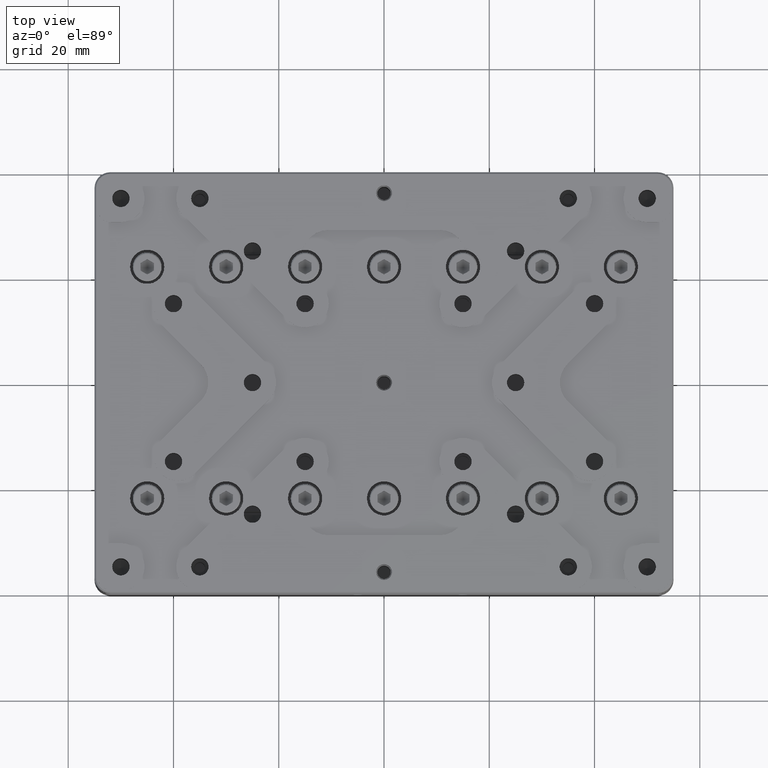
[diagram: clean part render]
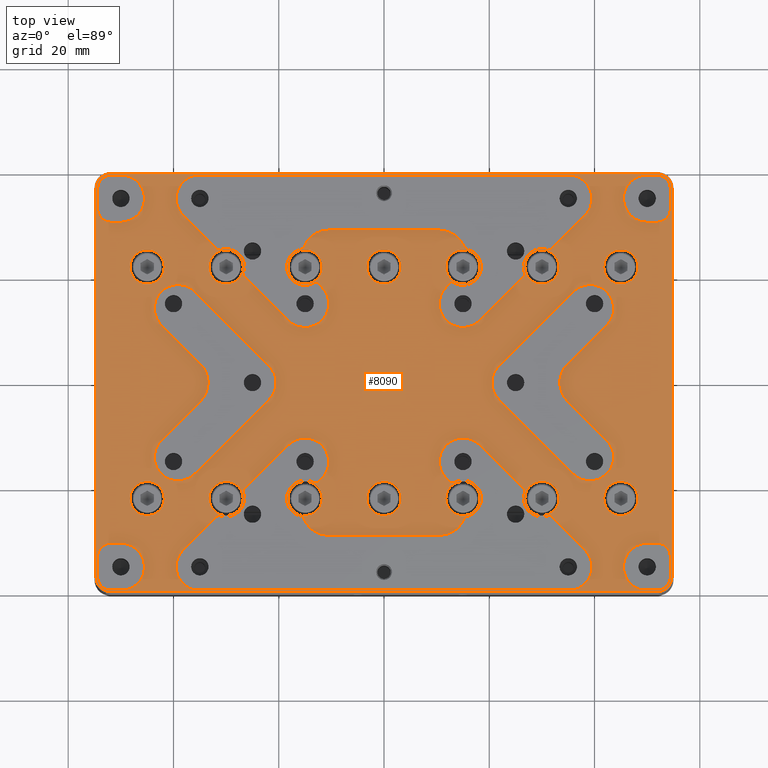
[diagram: same view with one face highlighted and labeled with its STEP entity id]
A machine part, top view. The second image highlights one B-rep face of the part: STEP entity #8090.
In plain terms, the highlighted planar face has unit normal (0, 0, 1).
Its self-contained STEP definition (entity closure, byte-faithful):
#10 = CARTESIAN_POINT ( 'NONE',  ( 18.25000000000000000, 22.00000000000000000, 13.19999999999999929 ) ) ;
#12 = DIRECTION ( 'NONE',  ( 1.000000000000000000, 0.000000000000000000, 0.000000000000000000 ) ) ;
#14 = CARTESIAN_POINT ( 'NONE',  ( 11.81801948466025998, -18.18198051533974891, 13.19999999999999929 ) ) ;
#77 = VERTEX_POINT ( 'NONE', #14010 ) ;
#89 = EDGE_CURVE ( 'NONE', #30521, #27032, #3802, .T. ) ;
#134 = VECTOR ( 'NONE', #9694, 1000.000000000000000 ) ;
#135 = CIRCLE ( 'NONE', #4164, 3.249999999999999556 ) ;
#179 = LINE ( 'NONE', #8775, #10811 ) ;
#190 = VECTOR ( 'NONE', #23543, 1000.000000000000114 ) ;
#279 = AXIS2_PLACEMENT_3D ( 'NONE', #3729, #8752, #11618 ) ;
#363 = AXIS2_PLACEMENT_3D ( 'NONE', #10751, #27037, #7706 ) ;
#374 = CARTESIAN_POINT ( 'NONE',  ( -33.41275637088000394, 0.02227247166553000118, 13.19999999999999929 ) ) ;
#454 = CIRCLE ( 'NONE', #10169, 2.699999995194955815 ) ;
#458 = EDGE_CURVE ( 'NONE', #13615, #10019, #25000, .T. ) ;
#460 = VERTEX_POINT ( 'NONE', #30417 ) ;
#468 = CARTESIAN_POINT ( 'NONE',  ( 31.40280413636999768, -25.74594988688000186, 13.19999999999999929 ) ) ;
#471 = CARTESIAN_POINT ( 'NONE',  ( -15.24499091167199971, -25.75994747085319858, 13.19999999999999929 ) ) ;
#487 = EDGE_CURVE ( 'NONE', #23775, #16332, #14132, .T. ) ;
#508 = DIRECTION ( 'NONE',  ( 0.000000000000000000, 0.000000000000000000, -1.000000000000000000 ) ) ;
#546 = DIRECTION ( 'NONE',  ( -1.000000000000000000, 0.000000000000000000, 0.000000000000000000 ) ) ;
#566 = DIRECTION ( 'NONE',  ( 0.000000000000000000, 0.000000000000000000, -1.000000000000000000 ) ) ;
#628 = CARTESIAN_POINT ( 'NONE',  ( 39.14213562372999888, 14.14213562373000066, 13.19999999999999929 ) ) ;
#660 = CARTESIAN_POINT ( 'NONE',  ( 18.18198051534000115, -11.81801948466000063, 13.19999999999999929 ) ) ;
#690 = CARTESIAN_POINT ( 'NONE',  ( 26.60760350372000005, 20.24364247303999775, 13.19999999999999929 ) ) ;
#725 = CARTESIAN_POINT ( 'NONE',  ( 10.56497115745999871, 29.00000000000000000, 13.19999999999999929 ) ) ;
#727 = DIRECTION ( 'NONE',  ( 1.000000000000000000, 0.000000000000000000, 0.000000000000000000 ) ) ;
#744 = DIRECTION ( 'NONE',  ( 1.000000000000000000, 0.000000000000000000, 0.000000000000000000 ) ) ;
#752 = ORIENTED_EDGE ( 'NONE', *, *, #16988, .T. ) ;
#780 = DIRECTION ( 'NONE',  ( -1.000000000000000000, 0.000000000000000000, 0.000000000000000000 ) ) ;
#817 = VERTEX_POINT ( 'NONE', #8553 ) ;
#818 = VERTEX_POINT ( 'NONE', #19472 ) ;
#830 = CIRCLE ( 'NONE', #18546, 0.5000000000000004441 ) ;
#868 = ORIENTED_EDGE ( 'NONE', *, *, #16919, .T. ) ;
#901 = CARTESIAN_POINT ( 'NONE',  ( -15.62386877620170011, -25.44394944069789943, 13.19999999999999929 ) ) ;
#916 = DIRECTION ( 'NONE',  ( 0.000000000000000000, 0.000000000000000000, -1.000000000000000000 ) ) ;
#924 = CARTESIAN_POINT ( 'NONE',  ( -49.05660188679230771, 39.39999999999955094, 13.19999999999999929 ) ) ;
#976 = DIRECTION ( 'NONE',  ( 1.000000000000000000, 0.000000000000000000, 0.000000000000000000 ) ) ;
#991 = AXIS2_PLACEMENT_3D ( 'NONE', #10428, #8104, #15462 ) ;
#994 = LINE ( 'NONE', #14269, #21371 ) ;
#1017 = AXIS2_PLACEMENT_3D ( 'NONE', #2155, #7359, #29368 ) ;
#1051 = ORIENTED_EDGE ( 'NONE', *, *, #8371, .T. ) ;
#1104 = AXIS2_PLACEMENT_3D ( 'NONE', #28124, #19712, #19884 ) ;
#1162 = DIRECTION ( 'NONE',  ( 1.000000000000000000, -6.938893903907222067E-15, 0.000000000000000000 ) ) ;
#1194 = VERTEX_POINT ( 'NONE', #22942 ) ;
#1222 = EDGE_CURVE ( 'NONE', #28905, #16680, #11797, .T. ) ;
#1251 = DIRECTION ( 'NONE',  ( 0.000000000000000000, 0.000000000000000000, -1.000000000000000000 ) ) ;
#1256 = DIRECTION ( 'NONE',  ( 0.000000000000000000, 0.000000000000000000, -1.000000000000000000 ) ) ;
#1302 = ORIENTED_EDGE ( 'NONE', *, *, #21353, .T. ) ;
#1309 = CARTESIAN_POINT ( 'NONE',  ( 10.56497115745999871, -29.00000000000000000, 13.19999999999999929 ) ) ;
#1396 = DIRECTION ( 'NONE',  ( 1.000000000000000000, 0.000000000000000000, 0.000000000000000000 ) ) ;
#1416 = LINE ( 'NONE', #34365, #29050 ) ;
#1440 = ORIENTED_EDGE ( 'NONE', *, *, #5142, .T. ) ;
#1486 = AXIS2_PLACEMENT_3D ( 'NONE', #18660, #21180, #32443 ) ;
#1494 = EDGE_LOOP ( 'NONE', ( #7008, #25933 ) ) ;
#1516 = AXIS2_PLACEMENT_3D ( 'NONE', #9128, #30960, #546 ) ;
#1526 = DIRECTION ( 'NONE',  ( 1.000000000000000000, 7.709882115452474222E-16, 0.000000000000000000 ) ) ;
#1554 = CIRCLE ( 'NONE', #9568, 1.500000000000000000 ) ;
#1573 = DIRECTION ( 'NONE',  ( 1.000000000000000000, 0.000000000000000000, 0.000000000000000000 ) ) ;
#1580 = VECTOR ( 'NONE', #18981, 1000.000000000000114 ) ;
#1590 = ORIENTED_EDGE ( 'NONE', *, *, #10799, .T. ) ;
#1603 = AXIS2_PLACEMENT_3D ( 'NONE', #628, #27844, #2781 ) ;
#1648 = CARTESIAN_POINT ( 'NONE',  ( 48.25000000000000000, 22.00000000000000000, 13.19999999999999929 ) ) ;
#1718 = VERTEX_POINT ( 'NONE', #18421 ) ;
#1728 = ORIENTED_EDGE ( 'NONE', *, *, #15946, .T. ) ;
#1742 = ORIENTED_EDGE ( 'NONE', *, *, #34929, .T. ) ;
#1762 = VERTEX_POINT ( 'NONE', #27709 ) ;
#1772 = EDGE_CURVE ( 'NONE', #10809, #34310, #25577, .T. ) ;
#1800 = CIRCLE ( 'NONE', #6387, 3.249999999999999556 ) ;
#1827 = CIRCLE ( 'NONE', #10984, 3.499999999999999556 ) ;
#1829 = ORIENTED_EDGE ( 'NONE', *, *, #31521, .T. ) ;
#1831 = FACE_BOUND ( 'NONE', #24617, .T. ) ;
#1837 = DIRECTION ( 'NONE',  ( 1.000000000000000000, 0.000000000000000000, 0.000000000000000000 ) ) ;
#1854 = DIRECTION ( 'NONE',  ( 1.000000000000000000, 0.000000000000000000, 0.000000000000000000 ) ) ;
#1880 = CARTESIAN_POINT ( 'NONE',  ( 3.250000000000000000, -22.00000000000000000, 13.19999999999999929 ) ) ;
#1936 = AXIS2_PLACEMENT_3D ( 'NONE', #18920, #26977, #11221 ) ;
#1976 = CIRCLE ( 'NONE', #3715, 3.499999999999999556 ) ;
#2052 = EDGE_CURVE ( 'NONE', #27417, #8675, #34724, .T. ) ;
#2056 = EDGE_CURVE ( 'NONE', #26150, #15978, #29644, .T. ) ;
#2073 = ORIENTED_EDGE ( 'NONE', *, *, #32743, .T. ) ;
#2079 = DIRECTION ( 'NONE',  ( 0.000000000000000000, 0.000000000000000000, -1.000000000000000000 ) ) ;
#2155 = CARTESIAN_POINT ( 'NONE',  ( -12.92403035997999972, 18.58088460947000087, 13.19999999999999929 ) ) ;
#2183 = EDGE_CURVE ( 'NONE', #4661, #35129, #10172, .T. ) ;
#2196 = AXIS2_PLACEMENT_3D ( 'NONE', #14198, #11681, #16530 ) ;
#2248 = ORIENTED_EDGE ( 'NONE', *, *, #24342, .T. ) ;
#2267 = EDGE_CURVE ( 'NONE', #16680, #10707, #2959, .T. ) ;
#2361 = PLANE ( 'NONE',  #27674 ) ;
#2384 = DIRECTION ( 'NONE',  ( 0.000000000000000000, 0.000000000000000000, -1.000000000000000000 ) ) ;
#2412 = DIRECTION ( 'NONE',  ( -1.000000000000000000, 0.000000000000000000, 0.000000000000000000 ) ) ;
#2492 = VERTEX_POINT ( 'NONE', #4904 ) ;
#2510 = DIRECTION ( 'NONE',  ( 1.000000000000000000, 0.000000000000000000, 0.000000000000000000 ) ) ;
#2541 = CARTESIAN_POINT ( 'NONE',  ( 0.000000000000000000, 39.39999999999999858, 13.19999999999999929 ) ) ;
#2549 = CARTESIAN_POINT ( 'NONE',  ( -18.25000000000000000, -22.00000000000000000, 13.19999999999999929 ) ) ;
#2599 = DIRECTION ( 'NONE',  ( -1.000000000000000000, 0.000000000000000000, 0.000000000000000000 ) ) ;
#2612 = CARTESIAN_POINT ( 'NONE',  ( -15.00000000000000000, 22.00000000000000000, 13.19999999999999929 ) ) ;
#2697 = CARTESIAN_POINT ( 'NONE',  ( -12.57047696938999870, 18.93443800006999922, 13.19999999999999929 ) ) ;
#2698 = DIRECTION ( 'NONE',  ( 1.000000000000000000, 0.000000000000000000, 0.000000000000000000 ) ) ;
#2728 = ORIENTED_EDGE ( 'NONE', *, *, #18477, .T. ) ;
#2781 = DIRECTION ( 'NONE',  ( 1.000000000000000000, 0.000000000000000000, 0.000000000000000000 ) ) ;
#2783 = EDGE_LOOP ( 'NONE', ( #25295, #11836, #14698, #3459, #26024, #32265, #4234, #22706, #20987, #8539 ) ) ;
#2798 = ORIENTED_EDGE ( 'NONE', *, *, #18124, .T. ) ;
#2851 = CARTESIAN_POINT ( 'NONE',  ( -54.69999999495149723, -36.99999998782499233, 13.20000000492881931 ) ) ;
#2869 = CARTESIAN_POINT ( 'NONE',  ( -26.72229384897915239, -20.77254638067780235, 13.19999999999999929 ) ) ;
#2880 = CIRCLE ( 'NONE', #23460, 0.5000000000000004441 ) ;
#2951 = EDGE_CURVE ( 'NONE', #28454, #18019, #18256, .T. ) ;
#2959 = LINE ( 'NONE', #32507, #7309 ) ;
#2978 = AXIS2_PLACEMENT_3D ( 'NONE', #22817, #9217, #11384 ) ;
#3033 = AXIS2_PLACEMENT_3D ( 'NONE', #4075, #25740, #20187 ) ;
#3039 = DIRECTION ( 'NONE',  ( 1.000000000000000000, 0.000000000000000000, 0.000000000000000000 ) ) ;
#3194 = AXIS2_PLACEMENT_3D ( 'NONE', #15282, #26026, #9375 ) ;
#3195 = CARTESIAN_POINT ( 'NONE',  ( 0.000000000000000000, -39.69999999516999623, 13.19999999999999929 ) ) ;
#3219 = CIRCLE ( 'NONE', #7792, 3.250000000000000000 ) ;
#3237 = ORIENTED_EDGE ( 'NONE', *, *, #25120, .T. ) ;
#3246 = CARTESIAN_POINT ( 'NONE',  ( 26.50000000000000000, -22.00000000000000000, 13.19999999999999929 ) ) ;
#3252 = CARTESIAN_POINT ( 'NONE',  ( 25.00000000000000000, 0.000000000000000000, 13.19999999999999929 ) ) ;
#3254 = DIRECTION ( 'NONE',  ( 1.000000000000000000, 0.000000000000000000, 0.000000000000000000 ) ) ;
#3296 = AXIS2_PLACEMENT_3D ( 'NONE', #24888, #19156, #3039 ) ;
#3388 = VERTEX_POINT ( 'NONE', #21411 ) ;
#3390 = CIRCLE ( 'NONE', #1104, 3.249999999999999556 ) ;
#3403 = DIRECTION ( 'NONE',  ( 1.000000000000000000, -2.775557561562888827E-14, 0.000000000000000000 ) ) ;
#3448 = DIRECTION ( 'NONE',  ( 0.7071067811865474617, -0.7071067811865474617, 0.000000000000000000 ) ) ;
#3455 = CARTESIAN_POINT ( 'NONE',  ( 43.64213562372999888, -14.14213562373000066, 13.19999999999999929 ) ) ;
#3459 = ORIENTED_EDGE ( 'NONE', *, *, #5673, .T. ) ;
#3514 = ORIENTED_EDGE ( 'NONE', *, *, #34251, .T. ) ;
#3589 = LINE ( 'NONE', #14521, #11318 ) ;
#3626 = CIRCLE ( 'NONE', #21923, 3.250000000000002665 ) ;
#3640 = EDGE_CURVE ( 'NONE', #10707, #28454, #16947, .T. ) ;
#3671 = CIRCLE ( 'NONE', #27699, 4.500000000000000888 ) ;
#3715 = AXIS2_PLACEMENT_3D ( 'NONE', #12773, #32436, #10255 ) ;
#3719 = DIRECTION ( 'NONE',  ( 1.000000000000000000, 0.000000000000000000, 0.000000000000000000 ) ) ;
#3722 = DIRECTION ( 'NONE',  ( 1.000000000000000000, 0.000000000000000000, 0.000000000000000000 ) ) ;
#3729 = CARTESIAN_POINT ( 'NONE',  ( -15.00000000000000000, 15.00000000000000000, 13.19999999999999929 ) ) ;
#3802 = CIRCLE ( 'NONE', #34674, 0.5000000000000004441 ) ;
#3823 = CIRCLE ( 'NONE', #23833, 0.5000000000000004441 ) ;
#3876 = AXIS2_PLACEMENT_3D ( 'NONE', #11824, #6285, #727 ) ;
#3930 = DIRECTION ( 'NONE',  ( -1.000000000000000000, 0.000000000000000000, 0.000000000000000000 ) ) ;
#3952 = CARTESIAN_POINT ( 'NONE',  ( -34.87722246494804779, 3.557806377596024916, 13.19999999999999929 ) ) ;
#3960 = EDGE_CURVE ( 'NONE', #29544, #25952, #33217, .T. ) ;
#3995 = ORIENTED_EDGE ( 'NONE', *, *, #17553, .T. ) ;
#4022 = LINE ( 'NONE', #14942, #25473 ) ;
#4075 = CARTESIAN_POINT ( 'NONE',  ( 15.00000000000000000, 22.00000000000000000, 13.19999999999999929 ) ) ;
#4083 = AXIS2_PLACEMENT_3D ( 'NONE', #9524, #916, #20439 ) ;
#4155 = VERTEX_POINT ( 'NONE', #28866 ) ;
#4164 = AXIS2_PLACEMENT_3D ( 'NONE', #21944, #19786, #27675 ) ;
#4171 = CIRCLE ( 'NONE', #24168, 4.499999999999997335 ) ;
#4174 = VERTEX_POINT ( 'NONE', #15975 ) ;
#4188 = EDGE_LOOP ( 'NONE', ( #9955, #29235 ) ) ;
#4206 = EDGE_CURVE ( 'NONE', #26586, #27269, #34957, .T. ) ;
#4234 = ORIENTED_EDGE ( 'NONE', *, *, #18278, .T. ) ;
#4262 = DIRECTION ( 'NONE',  ( 0.000000000000000000, 0.000000000000000000, -1.000000000000000000 ) ) ;
#4338 = EDGE_CURVE ( 'NONE', #11244, #30521, #10378, .T. ) ;
#4438 = VECTOR ( 'NONE', #6727, 1000.000000000000000 ) ;
#4442 = DIRECTION ( 'NONE',  ( 0.000000000000000000, 0.000000000000000000, -1.000000000000000000 ) ) ;
#4445 = VERTEX_POINT ( 'NONE', #725 ) ;
#4505 = DIRECTION ( 'NONE',  ( 1.000000000000000000, 0.000000000000000000, 0.000000000000000000 ) ) ;
#4529 = CIRCLE ( 'NONE', #25105, 3.499999999999999556 ) ;
#4552 = DIRECTION ( 'NONE',  ( -1.000000000000000000, 9.912705577010326536E-16, 0.000000000000000000 ) ) ;
#4558 = DIRECTION ( 'NONE',  ( -1.000000000000000000, 0.000000000000000000, 0.000000000000000000 ) ) ;
#4572 = EDGE_LOOP ( 'NONE', ( #10515, #11798 ) ) ;
#4596 = CARTESIAN_POINT ( 'NONE',  ( 35.96015510838999774, -17.32411613907000358, 13.19999999999999929 ) ) ;
#4602 = EDGE_CURVE ( 'NONE', #16773, #7624, #26986, .T. ) ;
#4609 = ORIENTED_EDGE ( 'NONE', *, *, #21946, .T. ) ;
#4661 = VERTEX_POINT ( 'NONE', #23620 ) ;
#4707 = FACE_BOUND ( 'NONE', #34773, .T. ) ;
#4741 = DIRECTION ( 'NONE',  ( 0.000000000000000000, 0.000000000000000000, -1.000000000000000000 ) ) ;
#4839 = CARTESIAN_POINT ( 'NONE',  ( 35.00000000000000000, 35.00000000000000000, 13.19999999999999929 ) ) ;
#4881 = FACE_BOUND ( 'NONE', #13271, .T. ) ;
#4887 = DIRECTION ( 'NONE',  ( 1.000000000000000000, 0.000000000000000000, 0.000000000000000000 ) ) ;
#4888 = LINE ( 'NONE', #10261, #22646 ) ;
#4904 = CARTESIAN_POINT ( 'NONE',  ( -48.25000000000000000, -22.00000000000000000, 13.19999999999999929 ) ) ;
#4930 = ORIENTED_EDGE ( 'NONE', *, *, #32512, .T. ) ;
#5003 = CIRCLE ( 'NONE', #25020, 4.499999999999997335 ) ;
#5050 = CIRCLE ( 'NONE', #25068, 2.500000000000002220 ) ;
#5081 = DIRECTION ( 'NONE',  ( 0.000000000000000000, 0.000000000000000000, 1.000000000000000000 ) ) ;
#5087 = ORIENTED_EDGE ( 'NONE', *, *, #33273, .T. ) ;
#5136 = VERTEX_POINT ( 'NONE', #14 ) ;
#5142 = EDGE_CURVE ( 'NONE', #28364, #31955, #12143, .T. ) ;
#5200 = ORIENTED_EDGE ( 'NONE', *, *, #33544, .T. ) ;
#5210 = DIRECTION ( 'NONE',  ( 0.7071067811865474617, -0.7071067811865474617, 0.000000000000000000 ) ) ;
#5214 = CARTESIAN_POINT ( 'NONE',  ( -51.89999999999999858, 33.00000000000000000, 13.19999999999999929 ) ) ;
#5239 = ORIENTED_EDGE ( 'NONE', *, *, #13276, .T. ) ;
#5250 = EDGE_CURVE ( 'NONE', #3388, #11788, #30606, .T. ) ;
#5278 = DIRECTION ( 'NONE',  ( 0.000000000000000000, 0.000000000000000000, 1.000000000000000000 ) ) ;
#5283 = VERTEX_POINT ( 'NONE', #28116 ) ;
#5291 = CARTESIAN_POINT ( 'NONE',  ( -33.25000000000000000, 22.00000000000000000, 13.19999999999999929 ) ) ;
#5303 = CARTESIAN_POINT ( 'NONE',  ( 18.25000000000000000, -22.00000000000000000, 13.19999999999999929 ) ) ;
#5311 = DIRECTION ( 'NONE',  ( -1.000000000000000000, 0.000000000000000000, 0.000000000000000000 ) ) ;
#5330 = AXIS2_PLACEMENT_3D ( 'NONE', #6950, #4262, #9277 ) ;
#5356 = VECTOR ( 'NONE', #30223, 1000.000000000000000 ) ;
#5381 = LINE ( 'NONE', #24715, #22312 ) ;
#5396 = DIRECTION ( 'NONE',  ( 0.000000000000000000, 0.000000000000000000, -1.000000000000000000 ) ) ;
#5402 = CARTESIAN_POINT ( 'NONE',  ( 12.57047696938999870, -18.93443800006999922, 13.19999999999999929 ) ) ;
#5483 = EDGE_CURVE ( 'NONE', #11259, #4155, #23607, .T. ) ;
#5488 = CARTESIAN_POINT ( 'NONE',  ( -1.500000000000000000, 1.836970198721030181E-16, 13.19999999999999929 ) ) ;
#5638 = CARTESIAN_POINT ( 'NONE',  ( -13.18352656498058018, 19.00827403328700171, 13.19999999999999929 ) ) ;
#5673 = EDGE_CURVE ( 'NONE', #23952, #34378, #4171, .T. ) ;
#5729 = AXIS2_PLACEMENT_3D ( 'NONE', #12517, #7138, #1396 ) ;
#5744 = DIRECTION ( 'NONE',  ( 1.000000000000000000, 0.000000000000000000, 0.000000000000000000 ) ) ;
#5752 = DIRECTION ( 'NONE',  ( 0.000000000000000000, 0.000000000000000000, -1.000000000000000000 ) ) ;
#5808 = AXIS2_PLACEMENT_3D ( 'NONE', #30443, #24367, #32777 ) ;
#5833 = EDGE_CURVE ( 'NONE', #34322, #4174, #24194, .T. ) ;
#5849 = AXIS2_PLACEMENT_3D ( 'NONE', #20185, #23575, #28771 ) ;
#5915 = EDGE_CURVE ( 'NONE', #460, #11137, #3626, .T. ) ;
#5939 = LINE ( 'NONE', #5402, #9996 ) ;
#5951 = CARTESIAN_POINT ( 'NONE',  ( 0.000000000000000000, 0.000000000000000000, 13.19999999999999929 ) ) ;
#5973 = DIRECTION ( 'NONE',  ( 0.000000000000000000, 0.000000000000000000, -1.000000000000000000 ) ) ;
#5976 = CARTESIAN_POINT ( 'NONE',  ( 49.05660188679220113, 39.39999999999999858, 13.19999999999999929 ) ) ;
#6038 = CARTESIAN_POINT ( 'NONE',  ( -48.25000000000000000, 22.00000000000000000, 13.19999999999999929 ) ) ;
#6059 = CARTESIAN_POINT ( 'NONE',  ( -50.00000000000000000, 35.00000000000000000, 13.19999999999999929 ) ) ;
#6062 = DIRECTION ( 'NONE',  ( 0.000000000000000000, 0.000000000000000000, -1.000000000000000000 ) ) ;
#6077 = ORIENTED_EDGE ( 'NONE', *, *, #30772, .T. ) ;
#6093 = CIRCLE ( 'NONE', #13527, 0.5000000000000004441 ) ;
#6111 = DIRECTION ( 'NONE',  ( 1.000000000000000000, -7.709882115452480139E-16, 0.000000000000000000 ) ) ;
#6118 = VERTEX_POINT ( 'NONE', #5303 ) ;
#6171 = EDGE_LOOP ( 'NONE', ( #34987, #13867, #23306, #9386, #23708, #7574, #26244 ) ) ;
#6285 = DIRECTION ( 'NONE',  ( 0.000000000000000000, 0.000000000000000000, 1.000000000000000000 ) ) ;
#6290 = AXIS2_PLACEMENT_3D ( 'NONE', #10046, #20442, #29031 ) ;
#6301 = DIRECTION ( 'NONE',  ( 0.000000000000000000, 0.000000000000000000, -1.000000000000000000 ) ) ;
#6353 = EDGE_CURVE ( 'NONE', #9829, #26150, #17383, .T. ) ;
#6366 = ORIENTED_EDGE ( 'NONE', *, *, #13537, .T. ) ;
#6387 = AXIS2_PLACEMENT_3D ( 'NONE', #33822, #17538, #17185 ) ;
#6428 = DIRECTION ( 'NONE',  ( -1.000000000000000000, 0.000000000000000000, 0.000000000000000000 ) ) ;
#6439 = CARTESIAN_POINT ( 'NONE',  ( 30.00000000000000000, -22.00000000000000000, 13.19999999999999929 ) ) ;
#6465 = ORIENTED_EDGE ( 'NONE', *, *, #25240, .T. ) ;
#6545 = CIRCLE ( 'NONE', #10522, 0.5000000000000004441 ) ;
#6568 = CIRCLE ( 'NONE', #18025, 3.250000000000002665 ) ;
#6574 = ORIENTED_EDGE ( 'NONE', *, *, #24409, .T. ) ;
#6596 = LINE ( 'NONE', #690, #21773 ) ;
#6607 = EDGE_CURVE ( 'NONE', #29935, #7473, #6545, .T. ) ;
#6611 = ORIENTED_EDGE ( 'NONE', *, *, #17566, .T. ) ;
#6655 = DIRECTION ( 'NONE',  ( 1.000000000000000000, 0.000000000000000000, 0.000000000000000000 ) ) ;
#6656 = DIRECTION ( 'NONE',  ( 0.000000000000000000, 0.000000000000000000, -1.000000000000000000 ) ) ;
#6727 = DIRECTION ( 'NONE',  ( 1.000000000000000000, 0.000000000000000000, 0.000000000000000000 ) ) ;
#6747 = ORIENTED_EDGE ( 'NONE', *, *, #14469, .T. ) ;
#6748 = CIRCLE ( 'NONE', #3876, 5.000000000000000888 ) ;
#6761 = CIRCLE ( 'NONE', #11334, 4.999999999999997335 ) ;
#6827 = LINE ( 'NONE', #14874, #35122 ) ;
#6832 = CARTESIAN_POINT ( 'NONE',  ( 15.00000000000000000, -22.00000000000000000, 13.19999999999999929 ) ) ;
#6853 = CARTESIAN_POINT ( 'NONE',  ( -54.39999999999999858, 0.000000000000000000, 13.19999999999999929 ) ) ;
#6854 = ORIENTED_EDGE ( 'NONE', *, *, #25687, .T. ) ;
#6907 = DIRECTION ( 'NONE',  ( 0.000000000000000000, 0.000000000000000000, -1.000000000000000000 ) ) ;
#6917 = DIRECTION ( 'NONE',  ( 0.000000000000000000, -1.000000000000000000, 0.000000000000000000 ) ) ;
#6950 = CARTESIAN_POINT ( 'NONE',  ( -51.89999999999999858, -33.00000000000000000, 13.19999999999999929 ) ) ;
#6987 = AXIS2_PLACEMENT_3D ( 'NONE', #10017, #15746, #23978 ) ;
#6988 = CARTESIAN_POINT ( 'NONE',  ( 15.71299288708999775, -25.93594221793999921, 13.19999999999999929 ) ) ;
#7008 = ORIENTED_EDGE ( 'NONE', *, *, #5833, .T. ) ;
#7056 = CARTESIAN_POINT ( 'NONE',  ( -21.81801948465999885, -3.181980515339000171, 13.19999999999999929 ) ) ;
#7073 = CARTESIAN_POINT ( 'NONE',  ( -51.89999999999999858, -36.90000000000000568, 13.19999999999999929 ) ) ;
#7077 = CARTESIAN_POINT ( 'NONE',  ( 18.18198051533974891, 11.81801948466025998, 13.19999999999999929 ) ) ;
#7113 = VERTEX_POINT ( 'NONE', #26281 ) ;
#7138 = DIRECTION ( 'NONE',  ( 0.000000000000000000, 0.000000000000000000, -1.000000000000000000 ) ) ;
#7168 = EDGE_CURVE ( 'NONE', #18019, #18964, #8839, .T. ) ;
#7174 = CIRCLE ( 'NONE', #21444, 4.500000000000000888 ) ;
#7277 = EDGE_CURVE ( 'NONE', #10019, #20301, #830, .T. ) ;
#7309 = VECTOR ( 'NONE', #2599, 1000.000000000000000 ) ;
#7320 = EDGE_CURVE ( 'NONE', #10057, #17180, #33987, .T. ) ;
#7359 = DIRECTION ( 'NONE',  ( 0.000000000000000000, 0.000000000000000000, -1.000000000000000000 ) ) ;
#7369 = EDGE_CURVE ( 'NONE', #35129, #9499, #30531, .T. ) ;
#7375 = CARTESIAN_POINT ( 'NONE',  ( -15.00000000000000000, -22.00000000000000000, 13.19999999999999929 ) ) ;
#7390 = CARTESIAN_POINT ( 'NONE',  ( 0.000000000000000000, 0.000000000000000000, 13.19999999999999929 ) ) ;
#7473 = VERTEX_POINT ( 'NONE', #471 ) ;
#7476 = EDGE_LOOP ( 'NONE', ( #5087, #30054 ) ) ;
#7574 = ORIENTED_EDGE ( 'NONE', *, *, #7168, .T. ) ;
#7576 = CARTESIAN_POINT ( 'NONE',  ( 0.000000000000000000, 39.39999999999999858, 13.19999999999999929 ) ) ;
#7624 = VERTEX_POINT ( 'NONE', #23717 ) ;
#7648 = EDGE_CURVE ( 'NONE', #1718, #30896, #23893, .T. ) ;
#7676 = CARTESIAN_POINT ( 'NONE',  ( -54.39999999999999858, 0.000000000000000000, 13.19999999999999929 ) ) ;
#7706 = DIRECTION ( 'NONE',  ( 1.000000000000000000, 0.000000000000000000, 0.000000000000000000 ) ) ;
#7717 = VERTEX_POINT ( 'NONE', #13161 ) ;
#7742 = CARTESIAN_POINT ( 'NONE',  ( 35.94339811320774913, 39.39999999999955094, 13.19999999999999929 ) ) ;
#7785 = CARTESIAN_POINT ( 'NONE',  ( 54.69999999497999710, 0.000000000000000000, 13.19999999999999929 ) ) ;
#7792 = AXIS2_PLACEMENT_3D ( 'NONE', #15703, #35193, #26615 ) ;
#7795 = DIRECTION ( 'NONE',  ( 1.000000000000000000, 0.000000000000000000, 0.000000000000000000 ) ) ;
#7832 = CIRCLE ( 'NONE', #23857, 3.249999999999999556 ) ;
#7943 = CIRCLE ( 'NONE', #15948, 4.499999999999997335 ) ;
#8022 = ORIENTED_EDGE ( 'NONE', *, *, #19203, .T. ) ;
#8036 = DIRECTION ( 'NONE',  ( 0.000000000000000000, 1.000000000000000000, 0.000000000000000000 ) ) ;
#8037 = CARTESIAN_POINT ( 'NONE',  ( -25.00000000000000000, 0.000000000000000000, 13.19999999999999929 ) ) ;
#8090 = ADVANCED_FACE ( 'NONE', ( #31556, #23676, #29397, #1831, #9900, #17961, #28876, #29567, #4707, #31913, #15980, #12769, #18484, #4881, #15795, #32258, #13293, #15628, #10251, #20643, #15274, #21170, #26885, #26540 ), #2361, .T. ) ;
#8104 = DIRECTION ( 'NONE',  ( 0.000000000000000000, 0.000000000000000000, 1.000000000000000000 ) ) ;
#8119 = DIRECTION ( 'NONE',  ( 1.000000000000000000, 0.000000000000000000, 0.000000000000000000 ) ) ;
#8156 = VERTEX_POINT ( 'NONE', #3246 ) ;
#8185 = VERTEX_POINT ( 'NONE', #27772 ) ;
#8228 = AXIS2_PLACEMENT_3D ( 'NONE', #6059, #8744, #3719 ) ;
#8237 = VERTEX_POINT ( 'NONE', #16154 ) ;
#8267 = CARTESIAN_POINT ( 'NONE',  ( -10.50000000000000000, 15.00000000000000000, 13.19999999999999929 ) ) ;
#8304 = VECTOR ( 'NONE', #21938, 1000.000000000000000 ) ;
#8319 = EDGE_CURVE ( 'NONE', #12101, #9829, #10543, .T. ) ;
#8323 = VERTEX_POINT ( 'NONE', #3952 ) ;
#8371 = EDGE_CURVE ( 'NONE', #23552, #12498, #3671, .T. ) ;
#8388 = DIRECTION ( 'NONE',  ( 0.000000000000000000, 0.000000000000000000, -1.000000000000000000 ) ) ;
#8414 = EDGE_CURVE ( 'NONE', #15989, #23612, #6827, .T. ) ;
#8433 = LINE ( 'NONE', #2697, #17529 ) ;
#8508 = VERTEX_POINT ( 'NONE', #12720 ) ;
#8535 = EDGE_CURVE ( 'NONE', #32775, #30013, #8838, .T. ) ;
#8539 = ORIENTED_EDGE ( 'NONE', *, *, #8414, .T. ) ;
#8553 = CARTESIAN_POINT ( 'NONE',  ( -38.18198051533999404, -31.81801948466000241, 13.19999999999999929 ) ) ;
#8559 = CARTESIAN_POINT ( 'NONE',  ( -18.18198051533974891, -11.81801948466025998, 13.19999999999999929 ) ) ;
#8560 = DIRECTION ( 'NONE',  ( -1.000000000000000000, 0.000000000000000000, 0.000000000000000000 ) ) ;
#8563 = DIRECTION ( 'NONE',  ( 1.000000000000000000, 0.000000000000000000, 0.000000000000000000 ) ) ;
#8614 = CARTESIAN_POINT ( 'NONE',  ( -20.50000000000000000, 0.000000000000000000, 13.19999999999999929 ) ) ;
#8644 = LINE ( 'NONE', #33165, #34275 ) ;
#8675 = VERTEX_POINT ( 'NONE', #27556 ) ;
#8686 = CIRCLE ( 'NONE', #26427, 3.249999999999999556 ) ;
#8739 = CARTESIAN_POINT ( 'NONE',  ( 31.75635752696164715, 25.39239649628335016, 13.19999999999999929 ) ) ;
#8744 = DIRECTION ( 'NONE',  ( 0.000000000000000000, 0.000000000000000000, -1.000000000000000000 ) ) ;
#8752 = DIRECTION ( 'NONE',  ( 0.000000000000000000, 0.000000000000000000, -1.000000000000000000 ) ) ;
#8775 = CARTESIAN_POINT ( 'NONE',  ( 0.000000000000000000, 30.50000000000000000, 13.19999999999999929 ) ) ;
#8809 = CARTESIAN_POINT ( 'NONE',  ( -31.40280413636999768, 25.74594988688000186, 13.19999999999999929 ) ) ;
#8832 = DIRECTION ( 'NONE',  ( 1.000000000000000000, -1.387778780781444413E-14, 0.000000000000000000 ) ) ;
#8838 = CIRCLE ( 'NONE', #15130, 4.499999999999997335 ) ;
#8839 = CIRCLE ( 'NONE', #5330, 2.500000000000002220 ) ;
#8844 = CARTESIAN_POINT ( 'NONE',  ( 0.000000000000000000, 39.69999999516999623, 13.19999999999999929 ) ) ;
#8856 = EDGE_CURVE ( 'NONE', #35013, #26946, #6568, .T. ) ;
#8869 = EDGE_CURVE ( 'NONE', #29022, #22294, #32508, .T. ) ;
#8901 = CIRCLE ( 'NONE', #33486, 3.250000000000000000 ) ;
#8907 = CIRCLE ( 'NONE', #22629, 5.000000000000000000 ) ;
#8910 = DIRECTION ( 'NONE',  ( 0.000000000000000000, 0.000000000000000000, -1.000000000000000000 ) ) ;
#8917 = CIRCLE ( 'NONE', #3194, 3.250000000000002665 ) ;
#8934 = ORIENTED_EDGE ( 'NONE', *, *, #2183, .T. ) ;
#8950 = CARTESIAN_POINT ( 'NONE',  ( 38.18198051533999404, 31.81801948466000241, 13.19999999999999929 ) ) ;
#8951 = AXIS2_PLACEMENT_3D ( 'NONE', #27430, #6301, #3254 ) ;
#8995 = CARTESIAN_POINT ( 'NONE',  ( 26.75000000000000000, -22.00000000000000000, 13.19999999999999929 ) ) ;
#9128 = CARTESIAN_POINT ( 'NONE',  ( 15.00000000000000000, -22.00000000000000000, 13.19999999999999929 ) ) ;
#9217 = DIRECTION ( 'NONE',  ( 0.000000000000000000, 0.000000000000000000, -1.000000000000000000 ) ) ;
#9276 = CIRCLE ( 'NONE', #33854, 3.250000000000000000 ) ;
#9277 = DIRECTION ( 'NONE',  ( 1.000000000000000000, 0.000000000000000000, 0.000000000000000000 ) ) ;
#9311 = CARTESIAN_POINT ( 'NONE',  ( -42.67766952967775751, 11.35825344233408174, 13.19999999999999929 ) ) ;
#9347 = EDGE_CURVE ( 'NONE', #18368, #1194, #4022, .T. ) ;
#9375 = DIRECTION ( 'NONE',  ( 1.000000000000000000, 0.000000000000000000, 0.000000000000000000 ) ) ;
#9386 = ORIENTED_EDGE ( 'NONE', *, *, #3640, .T. ) ;
#9408 = EDGE_CURVE ( 'NONE', #20606, #13797, #13488, .T. ) ;
#9419 = CARTESIAN_POINT ( 'NONE',  ( 15.00000000000000000, 15.00000000000000000, 13.19999999999999929 ) ) ;
#9472 = EDGE_CURVE ( 'NONE', #7473, #29022, #8907, .T. ) ;
#9499 = VERTEX_POINT ( 'NONE', #26561 ) ;
#9515 = AXIS2_PLACEMENT_3D ( 'NONE', #9419, #15330, #1526 ) ;
#9524 = CARTESIAN_POINT ( 'NONE',  ( -15.00000000000000000, -22.00000000000000000, 13.19999999999999929 ) ) ;
#9539 = CARTESIAN_POINT ( 'NONE',  ( -15.71299288708999775, -25.93594221793999921, 13.19999999999999929 ) ) ;
#9568 = AXIS2_PLACEMENT_3D ( 'NONE', #5951, #27970, #14371 ) ;
#9569 = CARTESIAN_POINT ( 'NONE',  ( -21.81801948466019780, 3.181980515339175142, 13.19999999999999929 ) ) ;
#9578 = CARTESIAN_POINT ( 'NONE',  ( -30.00000000000000000, -22.00000000000000000, 13.19999999999999929 ) ) ;
#9694 = DIRECTION ( 'NONE',  ( 0.000000000000000000, -1.000000000000000000, 0.000000000000000000 ) ) ;
#9777 = LINE ( 'NONE', #26069, #34681 ) ;
#9782 = VERTEX_POINT ( 'NONE', #924 ) ;
#9829 = VERTEX_POINT ( 'NONE', #3455 ) ;
#9900 = FACE_BOUND ( 'NONE', #2783, .T. ) ;
#9928 = CARTESIAN_POINT ( 'NONE',  ( 31.40280413636999768, 25.74594988688000186, 13.19999999999999929 ) ) ;
#9944 = CARTESIAN_POINT ( 'NONE',  ( 54.39999999999999858, 0.000000000000000000, 13.19999999999999929 ) ) ;
#9955 = ORIENTED_EDGE ( 'NONE', *, *, #8856, .T. ) ;
#9991 = EDGE_CURVE ( 'NONE', #7717, #23552, #8433, .T. ) ;
#9996 = VECTOR ( 'NONE', #30455, 1000.000000000000114 ) ;
#10004 = AXIS2_PLACEMENT_3D ( 'NONE', #17047, #566, #24745 ) ;
#10017 = CARTESIAN_POINT ( 'NONE',  ( -52.00000000000000000, -37.00000000000000000, 13.20000000481513958 ) ) ;
#10019 = VERTEX_POINT ( 'NONE', #2869 ) ;
#10046 = CARTESIAN_POINT ( 'NONE',  ( 15.00000000000000000, -15.00000000000000000, 13.19999999999999929 ) ) ;
#10057 = VERTEX_POINT ( 'NONE', #27584 ) ;
#10076 = CARTESIAN_POINT ( 'NONE',  ( -49.05660188679220113, -39.39999999999999858, 13.19999999999999929 ) ) ;
#10084 = ORIENTED_EDGE ( 'NONE', *, *, #4206, .T. ) ;
#10169 = AXIS2_PLACEMENT_3D ( 'NONE', #19211, #33352, #14731 ) ;
#10172 = CIRCLE ( 'NONE', #1603, 4.499999999999997335 ) ;
#10208 = CIRCLE ( 'NONE', #11920, 2.699999994967582140 ) ;
#10214 = CARTESIAN_POINT ( 'NONE',  ( 39.50000000000000000, 35.00000000000000000, 13.19999999999999929 ) ) ;
#10239 = EDGE_CURVE ( 'NONE', #25051, #27396, #11822, .T. ) ;
#10251 = FACE_BOUND ( 'NONE', #18415, .T. ) ;
#10255 = DIRECTION ( 'NONE',  ( -1.000000000000000000, 1.982541115402065307E-15, 0.000000000000000000 ) ) ;
#10261 = CARTESIAN_POINT ( 'NONE',  ( 0.000000000000000000, -39.39999999999999858, 13.19999999999999929 ) ) ;
#10325 = CARTESIAN_POINT ( 'NONE',  ( 0.000000000000000000, -30.50000000000000000, 13.19999999999999929 ) ) ;
#10328 = AXIS2_PLACEMENT_3D ( 'NONE', #18195, #26424, #29105 ) ;
#10378 = CIRCLE ( 'NONE', #5808, 3.500000000000003109 ) ;
#10413 = DIRECTION ( 'NONE',  ( 0.000000000000000000, 0.000000000000000000, -1.000000000000000000 ) ) ;
#10421 = DIRECTION ( 'NONE',  ( 1.000000000000000000, 0.000000000000000000, 0.000000000000000000 ) ) ;
#10428 = CARTESIAN_POINT ( 'NONE',  ( 52.00000000000000000, -37.00000000000000000, 13.20000000504249904 ) ) ;
#10439 = VERTEX_POINT ( 'NONE', #29686 ) ;
#10443 = AXIS2_PLACEMENT_3D ( 'NONE', #24401, #21193, #32283 ) ;
#10453 = ORIENTED_EDGE ( 'NONE', *, *, #33874, .T. ) ;
#10485 = DIRECTION ( 'NONE',  ( 0.000000000000000000, 0.000000000000000000, -1.000000000000000000 ) ) ;
#10515 = ORIENTED_EDGE ( 'NONE', *, *, #28184, .T. ) ;
#10516 = EDGE_CURVE ( 'NONE', #13612, #11244, #3823, .T. ) ;
#10522 = AXIS2_PLACEMENT_3D ( 'NONE', #9539, #25476, #8832 ) ;
#10543 = CIRCLE ( 'NONE', #33419, 4.499999999999997335 ) ;
#10576 = DIRECTION ( 'NONE',  ( 1.000000000000000000, 0.000000000000000000, 0.000000000000000000 ) ) ;
#10584 = CIRCLE ( 'NONE', #279, 4.500000000000000888 ) ;
#10595 = ORIENTED_EDGE ( 'NONE', *, *, #9347, .T. ) ;
#10605 = DIRECTION ( 'NONE',  ( -1.000000000000000000, 0.000000000000000000, 0.000000000000000000 ) ) ;
#10650 = VERTEX_POINT ( 'NONE', #34281 ) ;
#10656 = ORIENTED_EDGE ( 'NONE', *, *, #9991, .T. ) ;
#10707 = VERTEX_POINT ( 'NONE', #11245 ) ;
#10722 = EDGE_CURVE ( 'NONE', #34825, #27393, #7832, .T. ) ;
#10751 = CARTESIAN_POINT ( 'NONE',  ( 39.14213562372999888, 14.14213562373000066, 13.19999999999999929 ) ) ;
#10778 = CARTESIAN_POINT ( 'NONE',  ( 12.92403035997999972, -18.58088460947000087, 13.19999999999999929 ) ) ;
#10799 = EDGE_CURVE ( 'NONE', #11788, #20606, #14715, .T. ) ;
#10807 = CARTESIAN_POINT ( 'NONE',  ( -3.250000000000000000, -22.00000000000000000, 13.19999999999999929 ) ) ;
#10809 = VERTEX_POINT ( 'NONE', #32286 ) ;
#10811 = VECTOR ( 'NONE', #14507, 1000.000000000000000 ) ;
#10845 = DIRECTION ( 'NONE',  ( 1.000000000000000000, 0.000000000000000000, 0.000000000000000000 ) ) ;
#10928 = CARTESIAN_POINT ( 'NONE',  ( 26.60760350371664984, -20.24364247303834929, 13.19999999999999929 ) ) ;
#10950 = VERTEX_POINT ( 'NONE', #10807 ) ;
#10972 = EDGE_CURVE ( 'NONE', #21266, #17632, #454, .T. ) ;
#10984 = AXIS2_PLACEMENT_3D ( 'NONE', #24261, #13889, #21935 ) ;
#11038 = DIRECTION ( 'NONE',  ( -0.7071067811860040075, -0.7071067811870910269, 0.000000000000000000 ) ) ;
#11102 = CARTESIAN_POINT ( 'NONE',  ( -30.00000000000000000, -22.00000000000000000, 13.19999999999999929 ) ) ;
#11120 = CARTESIAN_POINT ( 'NONE',  ( -35.94339811320774913, -39.39999999999955094, 13.19999999999999929 ) ) ;
#11137 = VERTEX_POINT ( 'NONE', #1648 ) ;
#11221 = DIRECTION ( 'NONE',  ( 1.000000000000000000, 0.000000000000000000, 0.000000000000000000 ) ) ;
#11239 = VERTEX_POINT ( 'NONE', #11120 ) ;
#11244 = VERTEX_POINT ( 'NONE', #32773 ) ;
#11245 = CARTESIAN_POINT ( 'NONE',  ( -51.89999999999999858, -39.39999999999999858, 13.19999999999999929 ) ) ;
#11254 = VERTEX_POINT ( 'NONE', #13455 ) ;
#11259 = VERTEX_POINT ( 'NONE', #8614 ) ;
#11283 = EDGE_CURVE ( 'NONE', #19797, #23759, #23303, .T. ) ;
#11290 = EDGE_CURVE ( 'NONE', #77, #26458, #5003, .T. ) ;
#11299 = AXIS2_PLACEMENT_3D ( 'NONE', #19479, #30210, #8560 ) ;
#11318 = VECTOR ( 'NONE', #15404, 1000.000000000000000 ) ;
#11328 = CARTESIAN_POINT ( 'NONE',  ( 50.00000000000000000, -30.50000000000000000, 13.19999999999999929 ) ) ;
#11334 = AXIS2_PLACEMENT_3D ( 'NONE', #23736, #15338, #31617 ) ;
#11363 = ORIENTED_EDGE ( 'NONE', *, *, #10239, .T. ) ;
#11384 = DIRECTION ( 'NONE',  ( 1.000000000000000000, 0.000000000000000000, 0.000000000000000000 ) ) ;
#11393 = DIRECTION ( 'NONE',  ( 0.000000000000000000, 0.000000000000000000, -1.000000000000000000 ) ) ;
#11452 = CIRCLE ( 'NONE', #6290, 4.500000000000000888 ) ;
#11453 = CIRCLE ( 'NONE', #29740, 3.499999999999999556 ) ;
#11474 = CARTESIAN_POINT ( 'NONE',  ( -33.25000000000000000, -22.00000000000000000, 13.19999999999999929 ) ) ;
#11543 = DIRECTION ( 'NONE',  ( 0.000000000000000000, 0.000000000000000000, -1.000000000000000000 ) ) ;
#11576 = DIRECTION ( 'NONE',  ( -1.000000000000000000, 0.000000000000000000, 0.000000000000000000 ) ) ;
#11614 = EDGE_CURVE ( 'NONE', #33506, #25051, #17641, .T. ) ;
#11618 = DIRECTION ( 'NONE',  ( 1.000000000000000000, 0.000000000000000000, 0.000000000000000000 ) ) ;
#11644 = DIRECTION ( 'NONE',  ( -0.7071067811865474617, -0.7071067811865474617, 0.000000000000000000 ) ) ;
#11658 = EDGE_CURVE ( 'NONE', #7113, #16120, #32466, .T. ) ;
#11665 = ORIENTED_EDGE ( 'NONE', *, *, #14409, .T. ) ;
#11681 = DIRECTION ( 'NONE',  ( 0.000000000000000000, 0.000000000000000000, -1.000000000000000000 ) ) ;
#11762 = CARTESIAN_POINT ( 'NONE',  ( -31.40280413636999768, -25.74594988688000186, 13.19999999999999929 ) ) ;
#11788 = VERTEX_POINT ( 'NONE', #8739 ) ;
#11797 = CIRCLE ( 'NONE', #25528, 4.499999999999997335 ) ;
#11798 = ORIENTED_EDGE ( 'NONE', *, *, #13957, .T. ) ;
#11822 = CIRCLE ( 'NONE', #1516, 3.499999999999999556 ) ;
#11824 = CARTESIAN_POINT ( 'NONE',  ( 10.56497115745999871, -24.00000000000000000, 13.19999999999999929 ) ) ;
#11836 = ORIENTED_EDGE ( 'NONE', *, *, #5483, .T. ) ;
#11876 = CIRCLE ( 'NONE', #16449, 0.5000000000000004441 ) ;
#11891 = EDGE_CURVE ( 'NONE', #6118, #33734, #29632, .T. ) ;
#11909 = CARTESIAN_POINT ( 'NONE',  ( 11.75000000000000000, -22.00000000000000000, 13.19999999999999929 ) ) ;
#11920 = AXIS2_PLACEMENT_3D ( 'NONE', #23913, #34833, #21222 ) ;
#11998 = CARTESIAN_POINT ( 'NONE',  ( 13.18352656498058018, -19.00827403328700171, 13.19999999999999929 ) ) ;
#12101 = VERTEX_POINT ( 'NONE', #21593 ) ;
#12143 = CIRCLE ( 'NONE', #32144, 2.500000000000002220 ) ;
#12157 = CIRCLE ( 'NONE', #19601, 3.250000000000002665 ) ;
#12211 = ORIENTED_EDGE ( 'NONE', *, *, #22483, .T. ) ;
#12237 = VERTEX_POINT ( 'NONE', #19622 ) ;
#12306 = EDGE_CURVE ( 'NONE', #818, #20372, #35301, .T. ) ;
#12307 = VERTEX_POINT ( 'NONE', #12451 ) ;
#12395 = DIRECTION ( 'NONE',  ( 0.000000000000000000, 0.000000000000000000, -1.000000000000000000 ) ) ;
#12421 = VERTEX_POINT ( 'NONE', #7077 ) ;
#12422 = EDGE_CURVE ( 'NONE', #18964, #23054, #17829, .T. ) ;
#12451 = CARTESIAN_POINT ( 'NONE',  ( -15.62386877620170011, 25.44394944069769693, 13.19999999999999929 ) ) ;
#12458 = CIRCLE ( 'NONE', #1017, 0.5000000000000004441 ) ;
#12487 = EDGE_LOOP ( 'NONE', ( #10453, #8022 ) ) ;
#12498 = VERTEX_POINT ( 'NONE', #8267 ) ;
#12517 = CARTESIAN_POINT ( 'NONE',  ( 15.00000000000000000, 22.00000000000000000, 13.19999999999999929 ) ) ;
#12521 = EDGE_LOOP ( 'NONE', ( #21939, #34875 ) ) ;
#12589 = EDGE_CURVE ( 'NONE', #27396, #20101, #11876, .T. ) ;
#12592 = CARTESIAN_POINT ( 'NONE',  ( 49.05660188679230771, -39.39999999999955094, 13.19999999999999929 ) ) ;
#12608 = ORIENTED_EDGE ( 'NONE', *, *, #29099, .T. ) ;
#12634 = EDGE_CURVE ( 'NONE', #22294, #33506, #6748, .T. ) ;
#12697 = DIRECTION ( 'NONE',  ( 0.000000000000000000, 0.000000000000000000, -1.000000000000000000 ) ) ;
#12720 = CARTESIAN_POINT ( 'NONE',  ( 26.75000000000000000, 22.00000000000000000, 13.19999999999999929 ) ) ;
#12742 = EDGE_CURVE ( 'NONE', #14355, #12101, #3589, .T. ) ;
#12762 = CARTESIAN_POINT ( 'NONE',  ( -15.00000000000000000, -15.00000000000000000, 13.19999999999999929 ) ) ;
#12765 = CARTESIAN_POINT ( 'NONE',  ( 26.50000000000000000, 22.00000000000000000, 13.19999999999999929 ) ) ;
#12769 = FACE_BOUND ( 'NONE', #21959, .T. ) ;
#12773 = CARTESIAN_POINT ( 'NONE',  ( -15.00000000000000000, 22.00000000000000000, 13.19999999999999929 ) ) ;
#12787 = CARTESIAN_POINT ( 'NONE',  ( 0.000000000000000000, -22.00000000000000000, 13.19999999999999929 ) ) ;
#12914 = VERTEX_POINT ( 'NONE', #13765 ) ;
#12969 = EDGE_LOOP ( 'NONE', ( #21557, #15757 ) ) ;
#13047 = CIRCLE ( 'NONE', #34175, 4.999999999999997335 ) ;
#13161 = CARTESIAN_POINT ( 'NONE',  ( -12.57047696938744075, 18.93443800006755140, 13.19999999999999929 ) ) ;
#13178 = ORIENTED_EDGE ( 'NONE', *, *, #28029, .T. ) ;
#13234 = ORIENTED_EDGE ( 'NONE', *, *, #20620, .T. ) ;
#13246 = AXIS2_PLACEMENT_3D ( 'NONE', #32097, #29407, #4887 ) ;
#13271 = EDGE_LOOP ( 'NONE', ( #5239, #31068, #4609, #2073, #23782, #27616 ) ) ;
#13276 = EDGE_CURVE ( 'NONE', #17165, #23225, #5050, .T. ) ;
#13277 = DIRECTION ( 'NONE',  ( 0.000000000000000000, 0.000000000000000000, 1.000000000000000000 ) ) ;
#13293 = FACE_BOUND ( 'NONE', #12521, .T. ) ;
#13298 = LINE ( 'NONE', #35123, #26733 ) ;
#13301 = DIRECTION ( 'NONE',  ( -1.000000000000000000, 0.000000000000000000, 0.000000000000000000 ) ) ;
#13327 = CARTESIAN_POINT ( 'NONE',  ( -11.81801948466000063, -18.18198051534000115, 13.19999999999999929 ) ) ;
#13334 = ORIENTED_EDGE ( 'NONE', *, *, #9408, .T. ) ;
#13364 = DIRECTION ( 'NONE',  ( 1.000000000000000000, 0.000000000000000000, 0.000000000000000000 ) ) ;
#13369 = CARTESIAN_POINT ( 'NONE',  ( 45.00000000000000000, 22.00000000000000000, 13.19999999999999929 ) ) ;
#13382 = EDGE_CURVE ( 'NONE', #8323, #34703, #23713, .T. ) ;
#13402 = CARTESIAN_POINT ( 'NONE',  ( -50.00000000000000000, 30.50000000000000000, 13.19999999999999929 ) ) ;
#13437 = EDGE_CURVE ( 'NONE', #20111, #33994, #19404, .T. ) ;
#13455 = CARTESIAN_POINT ( 'NONE',  ( 51.89999999999999858, -39.39999999999999858, 13.19999999999999929 ) ) ;
#13475 = VERTEX_POINT ( 'NONE', #5976 ) ;
#13488 = CIRCLE ( 'NONE', #17483, 3.499999999999999556 ) ;
#13521 = AXIS2_PLACEMENT_3D ( 'NONE', #17624, #15631, #34434 ) ;
#13527 = AXIS2_PLACEMENT_3D ( 'NONE', #20627, #12395, #23832 ) ;
#13537 = EDGE_CURVE ( 'NONE', #25952, #15547, #7943, .T. ) ;
#13612 = VERTEX_POINT ( 'NONE', #31378 ) ;
#13615 = VERTEX_POINT ( 'NONE', #17789 ) ;
#13654 = CARTESIAN_POINT ( 'NONE',  ( 51.99999998101500154, 39.69999999577374439, 13.20000000301132026 ) ) ;
#13765 = CARTESIAN_POINT ( 'NONE',  ( 26.75405011312000170, 20.59719586362999877, 13.19999999999999929 ) ) ;
#13786 = VERTEX_POINT ( 'NONE', #12592 ) ;
#13797 = VERTEX_POINT ( 'NONE', #12765 ) ;
#13799 = AXIS2_PLACEMENT_3D ( 'NONE', #32418, #18993, #12 ) ;
#13816 = ORIENTED_EDGE ( 'NONE', *, *, #4602, .T. ) ;
#13867 = ORIENTED_EDGE ( 'NONE', *, *, #1222, .T. ) ;
#13889 = DIRECTION ( 'NONE',  ( 0.000000000000000000, 0.000000000000000000, 1.000000000000000000 ) ) ;
#13927 = VERTEX_POINT ( 'NONE', #374 ) ;
#13957 = EDGE_CURVE ( 'NONE', #33628, #8185, #3390, .T. ) ;
#13972 = ORIENTED_EDGE ( 'NONE', *, *, #12742, .T. ) ;
#13986 = DIRECTION ( 'NONE',  ( 1.000000000000000000, 0.000000000000000000, 0.000000000000000000 ) ) ;
#14010 = CARTESIAN_POINT ( 'NONE',  ( -45.50000000000000000, 35.00000000000000000, 13.19999999999999929 ) ) ;
#14052 = ORIENTED_EDGE ( 'NONE', *, *, #17309, .T. ) ;
#14056 = ORIENTED_EDGE ( 'NONE', *, *, #5250, .T. ) ;
#14083 = EDGE_CURVE ( 'NONE', #30896, #1762, #14261, .T. ) ;
#14096 = ORIENTED_EDGE ( 'NONE', *, *, #18013, .T. ) ;
#14118 = AXIS2_PLACEMENT_3D ( 'NONE', #22514, #8388, #8563 ) ;
#14132 = CIRCLE ( 'NONE', #3296, 2.500000000000002220 ) ;
#14141 = ORIENTED_EDGE ( 'NONE', *, *, #26251, .T. ) ;
#14147 = ORIENTED_EDGE ( 'NONE', *, *, #23640, .T. ) ;
#14198 = CARTESIAN_POINT ( 'NONE',  ( -39.14213562372999888, 14.14213562373000066, 13.19999999999999929 ) ) ;
#14208 = AXIS2_PLACEMENT_3D ( 'NONE', #30922, #508, #14640 ) ;
#14213 = CARTESIAN_POINT ( 'NONE',  ( 21.81801948465999885, 3.181980515339000171, 13.19999999999999929 ) ) ;
#14261 = CIRCLE ( 'NONE', #34267, 0.5000000000000004441 ) ;
#14269 = CARTESIAN_POINT ( 'NONE',  ( 0.000000000000000000, 29.00000000000000000, 13.19999999999999929 ) ) ;
#14315 = CARTESIAN_POINT ( 'NONE',  ( -51.99999998418000757, 39.69999999577374439, 13.20000000312499999 ) ) ;
#14326 = VERTEX_POINT ( 'NONE', #19320 ) ;
#14327 = EDGE_LOOP ( 'NONE', ( #22571, #19430 ) ) ;
#14355 = VERTEX_POINT ( 'NONE', #18786 ) ;
#14371 = DIRECTION ( 'NONE',  ( 1.000000000000000000, 0.000000000000000000, 0.000000000000000000 ) ) ;
#14398 = EDGE_LOOP ( 'NONE', ( #1440, #23335, #23279, #26618, #12608, #28695, #25502 ) ) ;
#14409 = EDGE_CURVE ( 'NONE', #17397, #26961, #25234, .T. ) ;
#14441 = AXIS2_PLACEMENT_3D ( 'NONE', #17864, #20539, #28950 ) ;
#14469 = EDGE_CURVE ( 'NONE', #7624, #25912, #16809, .T. ) ;
#14493 = EDGE_CURVE ( 'NONE', #28063, #12421, #6596, .T. ) ;
#14507 = DIRECTION ( 'NONE',  ( -1.000000000000000000, 0.000000000000000000, 0.000000000000000000 ) ) ;
#14521 = CARTESIAN_POINT ( 'NONE',  ( 34.87722246494999467, -3.513261434267000105, 13.19999999999999929 ) ) ;
#14523 = AXIS2_PLACEMENT_3D ( 'NONE', #23175, #6907, #25340 ) ;
#14590 = CIRCLE ( 'NONE', #10004, 3.250000000000002665 ) ;
#14614 = VERTEX_POINT ( 'NONE', #23943 ) ;
#14640 = DIRECTION ( 'NONE',  ( 1.000000000000000000, 0.000000000000000000, 0.000000000000000000 ) ) ;
#14687 = EDGE_CURVE ( 'NONE', #34310, #4445, #32253, .T. ) ;
#14698 = ORIENTED_EDGE ( 'NONE', *, *, #32693, .T. ) ;
#14715 = CIRCLE ( 'NONE', #15837, 0.5000000000000004441 ) ;
#14731 = DIRECTION ( 'NONE',  ( -1.000000000000000000, 0.000000000000000000, 0.000000000000000000 ) ) ;
#14774 = CARTESIAN_POINT ( 'NONE',  ( -18.50000000000000000, -22.00000000000000000, 13.19999999999999929 ) ) ;
#14804 = VERTEX_POINT ( 'NONE', #5488 ) ;
#14835 = VERTEX_POINT ( 'NONE', #20286 ) ;
#14870 = CARTESIAN_POINT ( 'NONE',  ( -12.92403035997999972, -18.58088460947000087, 13.19999999999999929 ) ) ;
#14874 = CARTESIAN_POINT ( 'NONE',  ( -35.96015510838999774, 17.32411613907000358, 13.19999999999999929 ) ) ;
#14942 = CARTESIAN_POINT ( 'NONE',  ( -18.18198051534000115, 11.81801948466000063, 13.19999999999999929 ) ) ;
#14952 = DIRECTION ( 'NONE',  ( 0.000000000000000000, 0.000000000000000000, -1.000000000000000000 ) ) ;
#15124 = EDGE_CURVE ( 'NONE', #20101, #5136, #5939, .T. ) ;
#15130 = AXIS2_PLACEMENT_3D ( 'NONE', #4839, #26499, #23803 ) ;
#15161 = ORIENTED_EDGE ( 'NONE', *, *, #15124, .T. ) ;
#15267 = DIRECTION ( 'NONE',  ( 1.000000000000000000, 0.000000000000000000, 0.000000000000000000 ) ) ;
#15274 = FACE_BOUND ( 'NONE', #12487, .T. ) ;
#15282 = CARTESIAN_POINT ( 'NONE',  ( 45.00000000000000000, 22.00000000000000000, 13.19999999999999929 ) ) ;
#15330 = DIRECTION ( 'NONE',  ( 0.000000000000000000, 0.000000000000000000, -1.000000000000000000 ) ) ;
#15338 = DIRECTION ( 'NONE',  ( 0.000000000000000000, 0.000000000000000000, 1.000000000000000000 ) ) ;
#15404 = DIRECTION ( 'NONE',  ( 0.7071067811864050201, -0.7071067811866900144, 0.000000000000000000 ) ) ;
#15462 = DIRECTION ( 'NONE',  ( -1.000000000000000000, 0.000000000000000000, 0.000000000000000000 ) ) ;
#15513 = ORIENTED_EDGE ( 'NONE', *, *, #24085, .T. ) ;
#15547 = VERTEX_POINT ( 'NONE', #20198 ) ;
#15580 = EDGE_CURVE ( 'NONE', #12498, #18368, #10584, .T. ) ;
#15620 = DIRECTION ( 'NONE',  ( 0.000000000000000000, 0.000000000000000000, -1.000000000000000000 ) ) ;
#15628 = FACE_BOUND ( 'NONE', #17845, .T. ) ;
#15631 = DIRECTION ( 'NONE',  ( 0.000000000000000000, 0.000000000000000000, -1.000000000000000000 ) ) ;
#15638 = VERTEX_POINT ( 'NONE', #14315 ) ;
#15679 = CARTESIAN_POINT ( 'NONE',  ( 30.00000000000000000, 22.00000000000000000, 13.19999999999999929 ) ) ;
#15696 = EDGE_LOOP ( 'NONE', ( #3514, #23586, #32556, #29468, #25206, #20440, #28630, #25159, #31602, #14056, #1590, #13334, #18285, #2248, #1742, #21238, #752, #29694, #29970, #25211, #6077, #18525, #14141, #1829, #18224, #14096, #10656, #1051, #19976, #10595 ) ) ;
#15703 = CARTESIAN_POINT ( 'NONE',  ( 0.000000000000000000, 22.00000000000000000, 13.19999999999999929 ) ) ;
#15708 = DIRECTION ( 'NONE',  ( 1.000000000000000000, -6.938893903907222067E-15, 0.000000000000000000 ) ) ;
#15746 = DIRECTION ( 'NONE',  ( 0.000000000000000000, 0.000000000000000000, 1.000000000000000000 ) ) ;
#15757 = ORIENTED_EDGE ( 'NONE', *, *, #5915, .T. ) ;
#15766 = EDGE_CURVE ( 'NONE', #31042, #22384, #28300, .T. ) ;
#15767 = CARTESIAN_POINT ( 'NONE',  ( -45.00000000000000000, 22.00000000000000000, 13.19999999999999929 ) ) ;
#15795 = FACE_BOUND ( 'NONE', #6171, .T. ) ;
#15837 = AXIS2_PLACEMENT_3D ( 'NONE', #9928, #21024, #4558 ) ;
#15862 = VECTOR ( 'NONE', #13364, 1000.000000000000000 ) ;
#15888 = DIRECTION ( 'NONE',  ( 0.000000000000000000, 0.000000000000000000, -1.000000000000000000 ) ) ;
#15931 = LINE ( 'NONE', #29695, #5356 ) ;
#15946 = EDGE_CURVE ( 'NONE', #8156, #818, #22033, .T. ) ;
#15948 = AXIS2_PLACEMENT_3D ( 'NONE', #25307, #20099, #25662 ) ;
#15975 = CARTESIAN_POINT ( 'NONE',  ( 11.75000000000000000, 22.00000000000000000, 13.19999999999999929 ) ) ;
#15978 = VERTEX_POINT ( 'NONE', #25355 ) ;
#15980 = FACE_BOUND ( 'NONE', #7476, .T. ) ;
#15989 = VERTEX_POINT ( 'NONE', #20332 ) ;
#16045 = CARTESIAN_POINT ( 'NONE',  ( -15.00000000000000000, -15.00000000000000000, 13.19999999999999929 ) ) ;
#16047 = DIRECTION ( 'NONE',  ( 1.000000000000000000, 0.000000000000000000, 0.000000000000000000 ) ) ;
#16120 = VERTEX_POINT ( 'NONE', #31431 ) ;
#16152 = CIRCLE ( 'NONE', #14441, 3.499999999999999556 ) ;
#16154 = CARTESIAN_POINT ( 'NONE',  ( 18.18198051534000115, -11.81801948466000063, 13.19999999999999929 ) ) ;
#16170 = CARTESIAN_POINT ( 'NONE',  ( 51.89999999999999858, 39.39999999999999858, 13.19999999999999929 ) ) ;
#16192 = ORIENTED_EDGE ( 'NONE', *, *, #33228, .T. ) ;
#16218 = DIRECTION ( 'NONE',  ( 0.000000000000000000, 0.000000000000000000, -1.000000000000000000 ) ) ;
#16227 = CIRCLE ( 'NONE', #8228, 4.499999999999997335 ) ;
#16230 = ORIENTED_EDGE ( 'NONE', *, *, #14083, .T. ) ;
#16302 = DIRECTION ( 'NONE',  ( 0.000000000000000000, 0.000000000000000000, -1.000000000000000000 ) ) ;
#16308 = CARTESIAN_POINT ( 'NONE',  ( 26.25405011312000170, 20.59719586362999877, 13.19999999999999929 ) ) ;
#16323 = DIRECTION ( 'NONE',  ( 1.000000000000000000, 6.938893903907222067E-15, 0.000000000000000000 ) ) ;
#16332 = VERTEX_POINT ( 'NONE', #18883 ) ;
#16365 = VECTOR ( 'NONE', #17977, 1000.000000000000000 ) ;
#16367 = VERTEX_POINT ( 'NONE', #21386 ) ;
#16420 = CIRCLE ( 'NONE', #29545, 4.500000000000000888 ) ;
#16449 = AXIS2_PLACEMENT_3D ( 'NONE', #10778, #5396, #16323 ) ;
#16494 = AXIS2_PLACEMENT_3D ( 'NONE', #24304, #23604, #18244 ) ;
#16530 = DIRECTION ( 'NONE',  ( 1.000000000000000000, 0.000000000000000000, 0.000000000000000000 ) ) ;
#16546 = EDGE_CURVE ( 'NONE', #11137, #460, #8917, .T. ) ;
#16617 = EDGE_CURVE ( 'NONE', #23612, #11259, #30072, .T. ) ;
#16680 = VERTEX_POINT ( 'NONE', #10076 ) ;
#16688 = CIRCLE ( 'NONE', #32673, 1.500000000000000000 ) ;
#16714 = CIRCLE ( 'NONE', #2978, 2.500000000000002220 ) ;
#16720 = CARTESIAN_POINT ( 'NONE',  ( 35.00000000000000000, -35.00000000000000000, 13.19999999999999929 ) ) ;
#16773 = VERTEX_POINT ( 'NONE', #2851 ) ;
#16809 = LINE ( 'NONE', #3195, #18933 ) ;
#16819 = LINE ( 'NONE', #27736, #19453 ) ;
#16843 = VECTOR ( 'NONE', #11038, 1000.000000000000000 ) ;
#16875 = CARTESIAN_POINT ( 'NONE',  ( -51.89999999999999858, -30.50000000000000000, 13.19999999999999929 ) ) ;
#16916 = DIRECTION ( 'NONE',  ( 1.000000000000000000, 0.000000000000000000, 0.000000000000000000 ) ) ;
#16919 = EDGE_CURVE ( 'NONE', #8675, #27417, #3219, .T. ) ;
#16944 = EDGE_CURVE ( 'NONE', #24960, #10809, #9777, .T. ) ;
#16947 = CIRCLE ( 'NONE', #26564, 2.500000000000002220 ) ;
#16962 = CIRCLE ( 'NONE', #25038, 4.499999999999997335 ) ;
#16983 = CARTESIAN_POINT ( 'NONE',  ( -54.39999999999999858, 36.90000000000000568, 13.19999999999999929 ) ) ;
#16988 = EDGE_CURVE ( 'NONE', #12421, #24960, #20366, .T. ) ;
#17016 = CIRCLE ( 'NONE', #23877, 4.499999999999997335 ) ;
#17042 = DIRECTION ( 'NONE',  ( 1.000000000000000000, -1.927470528863118556E-15, 0.000000000000000000 ) ) ;
#17047 = CARTESIAN_POINT ( 'NONE',  ( -45.00000000000000000, -22.00000000000000000, 13.19999999999999929 ) ) ;
#17055 = VERTEX_POINT ( 'NONE', #1880 ) ;
#17060 = CIRCLE ( 'NONE', #16494, 4.499999999999997335 ) ;
#17165 = VERTEX_POINT ( 'NONE', #19946 ) ;
#17180 = VERTEX_POINT ( 'NONE', #5638 ) ;
#17185 = DIRECTION ( 'NONE',  ( 1.000000000000000000, 0.000000000000000000, 0.000000000000000000 ) ) ;
#17299 = CIRCLE ( 'NONE', #10443, 3.249999999999999556 ) ;
#17309 = EDGE_CURVE ( 'NONE', #20301, #26586, #25850, .T. ) ;
#17361 = DIRECTION ( 'NONE',  ( 0.000000000000000000, 0.000000000000000000, -1.000000000000000000 ) ) ;
#17372 = DIRECTION ( 'NONE',  ( 1.000000000000000000, 0.000000000000000000, 0.000000000000000000 ) ) ;
#17383 = CIRCLE ( 'NONE', #14523, 4.499999999999997335 ) ;
#17397 = VERTEX_POINT ( 'NONE', #28533 ) ;
#17456 = CARTESIAN_POINT ( 'NONE',  ( -11.81801948466025998, 18.18198051533974891, 13.19999999999999929 ) ) ;
#17482 = LINE ( 'NONE', #9944, #18540 ) ;
#17483 = AXIS2_PLACEMENT_3D ( 'NONE', #18163, #34276, #4552 ) ;
#17518 = ORIENTED_EDGE ( 'NONE', *, *, #11614, .T. ) ;
#17526 = CIRCLE ( 'NONE', #1486, 0.5000000000000004441 ) ;
#17529 = VECTOR ( 'NONE', #5210, 1000.000000000000114 ) ;
#17538 = DIRECTION ( 'NONE',  ( 0.000000000000000000, 0.000000000000000000, -1.000000000000000000 ) ) ;
#17553 = EDGE_CURVE ( 'NONE', #25912, #12237, #35290, .T. ) ;
#17566 = EDGE_CURVE ( 'NONE', #26961, #30246, #13298, .T. ) ;
#17570 = DIRECTION ( 'NONE',  ( 0.7071067811865220376, -0.7071067811865729968, 0.000000000000000000 ) ) ;
#17607 = AXIS2_PLACEMENT_3D ( 'NONE', #34621, #26398, #1854 ) ;
#17610 = EDGE_LOOP ( 'NONE', ( #17833, #19006, #2728, #32994, #13816, #6747, #3995, #20828 ) ) ;
#17624 = CARTESIAN_POINT ( 'NONE',  ( -25.00000000000000000, 0.000000000000000000, 13.19999999999999929 ) ) ;
#17632 = VERTEX_POINT ( 'NONE', #13654 ) ;
#17641 = CIRCLE ( 'NONE', #28486, 0.5000000000000004441 ) ;
#17676 = DIRECTION ( 'NONE',  ( 0.000000000000000000, 0.000000000000000000, 1.000000000000000000 ) ) ;
#17681 = CARTESIAN_POINT ( 'NONE',  ( 12.57047696938744075, -18.93443800006755140, 13.19999999999999929 ) ) ;
#17726 = EDGE_CURVE ( 'NONE', #15978, #20111, #23285, .T. ) ;
#17789 = CARTESIAN_POINT ( 'NONE',  ( -31.22745361932149777, -25.27770615101890073, 13.19999999999999929 ) ) ;
#17829 = LINE ( 'NONE', #20503, #4438 ) ;
#17833 = ORIENTED_EDGE ( 'NONE', *, *, #10972, .T. ) ;
#17845 = EDGE_LOOP ( 'NONE', ( #18986, #15513 ) ) ;
#17857 = ORIENTED_EDGE ( 'NONE', *, *, #19779, .T. ) ;
#17864 = CARTESIAN_POINT ( 'NONE',  ( 30.00000000000000000, -22.00000000000000000, 13.19999999999999929 ) ) ;
#17961 = FACE_BOUND ( 'NONE', #14327, .T. ) ;
#17977 = DIRECTION ( 'NONE',  ( -0.7071067811865220376, -0.7071067811865729968, 0.000000000000000000 ) ) ;
#18013 = EDGE_CURVE ( 'NONE', #17180, #7717, #12458, .T. ) ;
#18019 = VERTEX_POINT ( 'NONE', #18280 ) ;
#18025 = AXIS2_PLACEMENT_3D ( 'NONE', #19076, #21585, #10845 ) ;
#18069 = ORIENTED_EDGE ( 'NONE', *, *, #12306, .T. ) ;
#18124 = EDGE_CURVE ( 'NONE', #8237, #19412, #22666, .T. ) ;
#18149 = DIRECTION ( 'NONE',  ( 0.7071067811865474617, 0.7071067811865474617, 0.000000000000000000 ) ) ;
#18163 = CARTESIAN_POINT ( 'NONE',  ( 30.00000000000000000, 22.00000000000000000, 13.19999999999999929 ) ) ;
#18194 = ORIENTED_EDGE ( 'NONE', *, *, #27245, .T. ) ;
#18195 = CARTESIAN_POINT ( 'NONE',  ( 51.89999999999999858, -36.90000000000000568, 13.19999999999999929 ) ) ;
#18216 = CARTESIAN_POINT ( 'NONE',  ( 42.67766952967570404, 11.35825344233570000, 13.19999999999999929 ) ) ;
#18224 = ORIENTED_EDGE ( 'NONE', *, *, #7320, .T. ) ;
#18244 = DIRECTION ( 'NONE',  ( 1.000000000000000000, 0.000000000000000000, 0.000000000000000000 ) ) ;
#18256 = LINE ( 'NONE', #7676, #22784 ) ;
#18278 = EDGE_CURVE ( 'NONE', #13927, #8323, #6761, .T. ) ;
#18280 = CARTESIAN_POINT ( 'NONE',  ( -54.39999999999999858, -33.00000000000000000, 13.19999999999999929 ) ) ;
#18282 = EDGE_CURVE ( 'NONE', #28759, #13927, #13047, .T. ) ;
#18285 = ORIENTED_EDGE ( 'NONE', *, *, #21989, .T. ) ;
#18336 = DIRECTION ( 'NONE',  ( 1.000000000000000000, 0.000000000000000000, 0.000000000000000000 ) ) ;
#18368 = VERTEX_POINT ( 'NONE', #19239 ) ;
#18396 = ORIENTED_EDGE ( 'NONE', *, *, #8869, .T. ) ;
#18415 = EDGE_LOOP ( 'NONE', ( #27644, #6465 ) ) ;
#18421 = CARTESIAN_POINT ( 'NONE',  ( -11.81801948466000063, -18.18198051534000115, 13.19999999999999929 ) ) ;
#18477 = EDGE_CURVE ( 'NONE', #15638, #5283, #10208, .T. ) ;
#18484 = FACE_BOUND ( 'NONE', #23565, .T. ) ;
#18514 = DIRECTION ( 'NONE',  ( 1.000000000000000000, 0.000000000000000000, 0.000000000000000000 ) ) ;
#18525 = ORIENTED_EDGE ( 'NONE', *, *, #11658, .T. ) ;
#18540 = VECTOR ( 'NONE', #6917, 1000.000000000000000 ) ;
#18546 = AXIS2_PLACEMENT_3D ( 'NONE', #20894, #15888, #15708 ) ;
#18660 = CARTESIAN_POINT ( 'NONE',  ( 26.25405011312000170, -20.59719586362999877, 13.19999999999999929 ) ) ;
#18663 = LINE ( 'NONE', #7576, #29012 ) ;
#18786 = CARTESIAN_POINT ( 'NONE',  ( 34.87722246494899281, -3.513261434266010230, 13.19999999999999929 ) ) ;
#18805 = CARTESIAN_POINT ( 'NONE',  ( -38.18198051533999404, -31.81801948466000241, 13.19999999999999929 ) ) ;
#18860 = CARTESIAN_POINT ( 'NONE',  ( 15.62386877620170011, -25.44394944069769693, 13.19999999999999929 ) ) ;
#18876 = EDGE_CURVE ( 'NONE', #13475, #23775, #18663, .T. ) ;
#18883 = CARTESIAN_POINT ( 'NONE',  ( 54.39999999999999858, 36.90000000000000568, 13.19999999999999929 ) ) ;
#18920 = CARTESIAN_POINT ( 'NONE',  ( 10.56497115745999871, 24.00000000000000000, 13.19999999999999929 ) ) ;
#18933 = VECTOR ( 'NONE', #33626, 1000.000000000000000 ) ;
#18946 = DIRECTION ( 'NONE',  ( 0.000000000000000000, 0.000000000000000000, -1.000000000000000000 ) ) ;
#18959 = AXIS2_PLACEMENT_3D ( 'NONE', #12762, #15620, #15267 ) ;
#18964 = VERTEX_POINT ( 'NONE', #16875 ) ;
#18981 = DIRECTION ( 'NONE',  ( 0.7071067811865474617, 0.7071067811865474617, 0.000000000000000000 ) ) ;
#18986 = ORIENTED_EDGE ( 'NONE', *, *, #15766, .T. ) ;
#18993 = DIRECTION ( 'NONE',  ( 0.000000000000000000, 0.000000000000000000, -1.000000000000000000 ) ) ;
#19006 = ORIENTED_EDGE ( 'NONE', *, *, #31201, .T. ) ;
#19049 = VERTEX_POINT ( 'NONE', #11328 ) ;
#19054 = CARTESIAN_POINT ( 'NONE',  ( -11.75000000000000000, -22.00000000000000000, 13.19999999999999929 ) ) ;
#19076 = CARTESIAN_POINT ( 'NONE',  ( 30.00000000000000000, -22.00000000000000000, 13.19999999999999929 ) ) ;
#19088 = EDGE_CURVE ( 'NONE', #14804, #33303, #1554, .T. ) ;
#19156 = DIRECTION ( 'NONE',  ( 0.000000000000000000, 0.000000000000000000, -1.000000000000000000 ) ) ;
#19203 = EDGE_CURVE ( 'NONE', #8508, #16367, #35287, .T. ) ;
#19211 = CARTESIAN_POINT ( 'NONE',  ( 52.00000000000000000, 37.00000000000000000, 13.20000000481513958 ) ) ;
#19239 = CARTESIAN_POINT ( 'NONE',  ( -18.18198051534000115, 11.81801948466000063, 13.19999999999999929 ) ) ;
#19304 = DIRECTION ( 'NONE',  ( 0.000000000000000000, 0.000000000000000000, -1.000000000000000000 ) ) ;
#19320 = CARTESIAN_POINT ( 'NONE',  ( -41.75000000000000000, -22.00000000000000000, 13.19999999999999929 ) ) ;
#19356 = CARTESIAN_POINT ( 'NONE',  ( -10.50000000000000000, -15.00000000000000000, 13.19999999999999929 ) ) ;
#19371 = EDGE_CURVE ( 'NONE', #817, #10650, #32403, .T. ) ;
#19395 = CARTESIAN_POINT ( 'NONE',  ( -50.00000000000000000, -35.00000000000000000, 13.19999999999999929 ) ) ;
#19404 = LINE ( 'NONE', #14213, #34821 ) ;
#19412 = VERTEX_POINT ( 'NONE', #10928 ) ;
#19430 = ORIENTED_EDGE ( 'NONE', *, *, #31723, .T. ) ;
#19453 = VECTOR ( 'NONE', #6428, 1000.000000000000000 ) ;
#19472 = CARTESIAN_POINT ( 'NONE',  ( 31.22745361932149777, -25.27770615101890073, 13.19999999999999929 ) ) ;
#19479 = CARTESIAN_POINT ( 'NONE',  ( 15.00000000000000000, 22.00000000000000000, 13.19999999999999929 ) ) ;
#19486 = CARTESIAN_POINT ( 'NONE',  ( -39.14213562372999888, -14.14213562373000066, 13.19999999999999929 ) ) ;
#19491 = CARTESIAN_POINT ( 'NONE',  ( -54.69999999497999710, 0.000000000000000000, 13.19999999999999929 ) ) ;
#19601 = AXIS2_PLACEMENT_3D ( 'NONE', #32457, #21364, #24223 ) ;
#19616 = ORIENTED_EDGE ( 'NONE', *, *, #18876, .T. ) ;
#19622 = CARTESIAN_POINT ( 'NONE',  ( 54.69999999560749870, -36.99999998782499233, 13.20000000314876054 ) ) ;
#19693 = EDGE_CURVE ( 'NONE', #26946, #35013, #23921, .T. ) ;
#19712 = DIRECTION ( 'NONE',  ( 0.000000000000000000, 0.000000000000000000, -1.000000000000000000 ) ) ;
#19730 = DIRECTION ( 'NONE',  ( 0.000000000000000000, 0.000000000000000000, -1.000000000000000000 ) ) ;
#19779 = EDGE_CURVE ( 'NONE', #30246, #13475, #17060, .T. ) ;
#19786 = DIRECTION ( 'NONE',  ( 0.000000000000000000, 0.000000000000000000, -1.000000000000000000 ) ) ;
#19797 = VERTEX_POINT ( 'NONE', #35218 ) ;
#19850 = AXIS2_PLACEMENT_3D ( 'NONE', #29025, #6656, #4505 ) ;
#19884 = DIRECTION ( 'NONE',  ( 1.000000000000000000, 0.000000000000000000, 0.000000000000000000 ) ) ;
#19906 = VERTEX_POINT ( 'NONE', #21618 ) ;
#19946 = CARTESIAN_POINT ( 'NONE',  ( 51.89999999999999858, -30.50000000000000000, 13.19999999999999929 ) ) ;
#19976 = ORIENTED_EDGE ( 'NONE', *, *, #15580, .T. ) ;
#20060 = AXIS2_PLACEMENT_3D ( 'NONE', #20194, #6062, #3722 ) ;
#20068 = CARTESIAN_POINT ( 'NONE',  ( -35.00000000000000000, 35.00000000000000000, 13.19999999999999929 ) ) ;
#20093 = EDGE_CURVE ( 'NONE', #10650, #13615, #23358, .T. ) ;
#20099 = DIRECTION ( 'NONE',  ( 0.000000000000000000, 0.000000000000000000, -1.000000000000000000 ) ) ;
#20101 = VERTEX_POINT ( 'NONE', #17681 ) ;
#20111 = VERTEX_POINT ( 'NONE', #25903 ) ;
#20157 = CIRCLE ( 'NONE', #4083, 3.249999999999999556 ) ;
#20185 = CARTESIAN_POINT ( 'NONE',  ( -45.00000000000000000, -22.00000000000000000, 13.19999999999999929 ) ) ;
#20187 = DIRECTION ( 'NONE',  ( 1.000000000000000000, 0.000000000000000000, 0.000000000000000000 ) ) ;
#20194 = CARTESIAN_POINT ( 'NONE',  ( 51.89999999999999858, 33.00000000000000000, 13.19999999999999929 ) ) ;
#20198 = CARTESIAN_POINT ( 'NONE',  ( 35.94339811320785572, -39.39999999999999858, 13.19999999999999929 ) ) ;
#20286 = CARTESIAN_POINT ( 'NONE',  ( -41.75000000000000000, 22.00000000000000000, 13.19999999999999929 ) ) ;
#20301 = VERTEX_POINT ( 'NONE', #33340 ) ;
#20332 = CARTESIAN_POINT ( 'NONE',  ( -35.96015510838994800, 17.32411613906995029, 13.19999999999999929 ) ) ;
#20360 = ORIENTED_EDGE ( 'NONE', *, *, #17726, .T. ) ;
#20365 = EDGE_CURVE ( 'NONE', #34703, #15989, #27373, .T. ) ;
#20366 = CIRCLE ( 'NONE', #9515, 4.500000000000000888 ) ;
#20372 = VERTEX_POINT ( 'NONE', #22594 ) ;
#20439 = DIRECTION ( 'NONE',  ( 1.000000000000000000, 0.000000000000000000, 0.000000000000000000 ) ) ;
#20440 = ORIENTED_EDGE ( 'NONE', *, *, #31847, .T. ) ;
#20442 = DIRECTION ( 'NONE',  ( 0.000000000000000000, 0.000000000000000000, -1.000000000000000000 ) ) ;
#20447 = LINE ( 'NONE', #6853, #26108 ) ;
#20483 = ORIENTED_EDGE ( 'NONE', *, *, #2056, .T. ) ;
#20503 = CARTESIAN_POINT ( 'NONE',  ( 0.000000000000000000, -30.50000000000000000, 13.19999999999999929 ) ) ;
#20539 = DIRECTION ( 'NONE',  ( 0.000000000000000000, 0.000000000000000000, 1.000000000000000000 ) ) ;
#20606 = VERTEX_POINT ( 'NONE', #26688 ) ;
#20620 = EDGE_CURVE ( 'NONE', #1762, #33804, #4529, .T. ) ;
#20624 = VERTEX_POINT ( 'NONE', #26865 ) ;
#20627 = CARTESIAN_POINT ( 'NONE',  ( -26.25405011312000170, 20.59719586362999877, 13.19999999999999929 ) ) ;
#20643 = FACE_BOUND ( 'NONE', #4188, .T. ) ;
#20725 = AXIS2_PLACEMENT_3D ( 'NONE', #6832, #28663, #25981 ) ;
#20785 = EDGE_CURVE ( 'NONE', #26458, #28364, #179, .T. ) ;
#20828 = ORIENTED_EDGE ( 'NONE', *, *, #22061, .T. ) ;
#20894 = CARTESIAN_POINT ( 'NONE',  ( -26.25405011312000170, -20.59719586362999877, 13.19999999999999929 ) ) ;
#20987 = ORIENTED_EDGE ( 'NONE', *, *, #20365, .T. ) ;
#21014 = AXIS2_PLACEMENT_3D ( 'NONE', #3252, #25282, #744 ) ;
#21024 = DIRECTION ( 'NONE',  ( 0.000000000000000000, 0.000000000000000000, -1.000000000000000000 ) ) ;
#21041 = VECTOR ( 'NONE', #21660, 1000.000000000000114 ) ;
#21090 = AXIS2_PLACEMENT_3D ( 'NONE', #11762, #22674, #33602 ) ;
#21116 = CARTESIAN_POINT ( 'NONE',  ( -10.56497115745999871, 24.00000000000000000, 13.19999999999999929 ) ) ;
#21170 = FACE_BOUND ( 'NONE', #1494, .T. ) ;
#21175 = ORIENTED_EDGE ( 'NONE', *, *, #32823, .T. ) ;
#21180 = DIRECTION ( 'NONE',  ( 0.000000000000000000, 0.000000000000000000, -1.000000000000000000 ) ) ;
#21193 = DIRECTION ( 'NONE',  ( 0.000000000000000000, 0.000000000000000000, -1.000000000000000000 ) ) ;
#21222 = DIRECTION ( 'NONE',  ( -1.000000000000000000, 0.000000000000000000, 0.000000000000000000 ) ) ;
#21238 = ORIENTED_EDGE ( 'NONE', *, *, #14493, .T. ) ;
#21266 = VERTEX_POINT ( 'NONE', #22886 ) ;
#21285 = DIRECTION ( 'NONE',  ( -1.000000000000000000, 0.000000000000000000, 0.000000000000000000 ) ) ;
#21353 = EDGE_CURVE ( 'NONE', #15547, #11239, #16819, .T. ) ;
#21364 = DIRECTION ( 'NONE',  ( 0.000000000000000000, 0.000000000000000000, -1.000000000000000000 ) ) ;
#21371 = VECTOR ( 'NONE', #30894, 1000.000000000000000 ) ;
#21386 = CARTESIAN_POINT ( 'NONE',  ( 33.25000000000000000, 22.00000000000000000, 13.19999999999999929 ) ) ;
#21406 = CARTESIAN_POINT ( 'NONE',  ( 0.000000000000000000, 22.00000000000000000, 13.19999999999999929 ) ) ;
#21411 = CARTESIAN_POINT ( 'NONE',  ( 38.18198051533999404, 31.81801948466000241, 13.19999999999999929 ) ) ;
#21441 = EDGE_CURVE ( 'NONE', #4174, #34322, #27446, .T. ) ;
#21444 = AXIS2_PLACEMENT_3D ( 'NONE', #20068, #30982, #25798 ) ;
#21463 = AXIS2_PLACEMENT_3D ( 'NONE', #21606, #32528, #11576 ) ;
#21476 = EDGE_LOOP ( 'NONE', ( #21870, #27818 ) ) ;
#21495 = CARTESIAN_POINT ( 'NONE',  ( 15.33983648938515110, 25.48346252462929939, 13.19999999999999929 ) ) ;
#21557 = ORIENTED_EDGE ( 'NONE', *, *, #16546, .T. ) ;
#21585 = DIRECTION ( 'NONE',  ( 0.000000000000000000, 0.000000000000000000, -1.000000000000000000 ) ) ;
#21587 = LINE ( 'NONE', #10325, #15862 ) ;
#21593 = CARTESIAN_POINT ( 'NONE',  ( 42.32411613907005687, -10.96015510839060170, 13.19999999999999929 ) ) ;
#21606 = CARTESIAN_POINT ( 'NONE',  ( 30.00000000000000000, -22.00000000000000000, 13.19999999999999929 ) ) ;
#21618 = CARTESIAN_POINT ( 'NONE',  ( -38.18198051533974535, 31.81801948466030083, 13.19999999999999929 ) ) ;
#21660 = DIRECTION ( 'NONE',  ( 0.7071067811865474617, -0.7071067811865474617, 0.000000000000000000 ) ) ;
#21721 = CARTESIAN_POINT ( 'NONE',  ( 35.96015510839019669, 17.32411613906970160, 13.19999999999999929 ) ) ;
#21773 = VECTOR ( 'NONE', #33446, 1000.000000000000114 ) ;
#21781 = ORIENTED_EDGE ( 'NONE', *, *, #12634, .T. ) ;
#21806 = CARTESIAN_POINT ( 'NONE',  ( -26.25405011312000170, 20.59719586362999877, 13.19999999999999929 ) ) ;
#21810 = DIRECTION ( 'NONE',  ( 1.000000000000000000, 0.000000000000000000, 0.000000000000000000 ) ) ;
#21826 = CARTESIAN_POINT ( 'NONE',  ( 50.00000000000000000, 30.50000000000000000, 13.19999999999999929 ) ) ;
#21870 = ORIENTED_EDGE ( 'NONE', *, *, #11283, .T. ) ;
#21923 = AXIS2_PLACEMENT_3D ( 'NONE', #13369, #2079, #32156 ) ;
#21935 = DIRECTION ( 'NONE',  ( -1.000000000000000000, 0.000000000000000000, 0.000000000000000000 ) ) ;
#21938 = DIRECTION ( 'NONE',  ( 1.000000000000000000, 0.000000000000000000, 0.000000000000000000 ) ) ;
#21939 = ORIENTED_EDGE ( 'NONE', *, *, #10722, .T. ) ;
#21944 = CARTESIAN_POINT ( 'NONE',  ( -30.00000000000000000, 22.00000000000000000, 13.19999999999999929 ) ) ;
#21946 = EDGE_CURVE ( 'NONE', #33057, #11254, #25759, .T. ) ;
#21959 = EDGE_LOOP ( 'NONE', ( #25317, #23868 ) ) ;
#21989 = EDGE_CURVE ( 'NONE', #13797, #32378, #11453, .T. ) ;
#22017 = DIRECTION ( 'NONE',  ( 0.000000000000000000, 0.000000000000000000, 1.000000000000000000 ) ) ;
#22033 = CIRCLE ( 'NONE', #21463, 3.499999999999999556 ) ;
#22061 = EDGE_CURVE ( 'NONE', #12237, #21266, #27294, .T. ) ;
#22115 = CIRCLE ( 'NONE', #363, 4.499999999999997335 ) ;
#22170 = CARTESIAN_POINT ( 'NONE',  ( 33.25000000000000000, -22.00000000000000000, 13.19999999999999929 ) ) ;
#22294 = VERTEX_POINT ( 'NONE', #1309 ) ;
#22312 = VECTOR ( 'NONE', #32589, 1000.000000000000114 ) ;
#22376 = DIRECTION ( 'NONE',  ( -1.000000000000000000, 0.000000000000000000, 0.000000000000000000 ) ) ;
#22384 = VERTEX_POINT ( 'NONE', #2549 ) ;
#22422 = CARTESIAN_POINT ( 'NONE',  ( -35.96015510839019669, -17.32411613906970160, 13.19999999999999929 ) ) ;
#22470 = DIRECTION ( 'NONE',  ( -0.7071067811865474617, 0.7071067811865474617, 0.000000000000000000 ) ) ;
#22483 = EDGE_CURVE ( 'NONE', #9499, #14355, #31531, .T. ) ;
#22514 = CARTESIAN_POINT ( 'NONE',  ( 26.25405011312000170, 20.59719586362999877, 13.19999999999999929 ) ) ;
#22571 = ORIENTED_EDGE ( 'NONE', *, *, #27957, .T. ) ;
#22594 = CARTESIAN_POINT ( 'NONE',  ( 31.75635752696249980, -25.39239649628249751, 13.19999999999999929 ) ) ;
#22610 = ORIENTED_EDGE ( 'NONE', *, *, #8319, .T. ) ;
#22629 = AXIS2_PLACEMENT_3D ( 'NONE', #29595, #5081, #18336 ) ;
#22646 = VECTOR ( 'NONE', #13301, 1000.000000000000000 ) ;
#22666 = LINE ( 'NONE', #660, #21041 ) ;
#22674 = DIRECTION ( 'NONE',  ( 0.000000000000000000, 0.000000000000000000, -1.000000000000000000 ) ) ;
#22687 = VECTOR ( 'NONE', #18149, 1000.000000000000114 ) ;
#22706 = ORIENTED_EDGE ( 'NONE', *, *, #13382, .T. ) ;
#22784 = VECTOR ( 'NONE', #8036, 1000.000000000000000 ) ;
#22817 = CARTESIAN_POINT ( 'NONE',  ( -51.89999999999999858, 36.90000000000000568, 13.19999999999999929 ) ) ;
#22886 = CARTESIAN_POINT ( 'NONE',  ( 54.69999999497379406, 36.99999998782499233, 13.20000000492881931 ) ) ;
#22906 = CARTESIAN_POINT ( 'NONE',  ( 3.250000000000000000, 22.00000000000000000, 13.19999999999999929 ) ) ;
#22922 = CARTESIAN_POINT ( 'NONE',  ( 39.14213562372999888, -14.14213562373000066, 13.19999999999999929 ) ) ;
#22942 = CARTESIAN_POINT ( 'NONE',  ( -26.60760350371664984, 20.24364247303834929, 13.19999999999999929 ) ) ;
#22975 = ORIENTED_EDGE ( 'NONE', *, *, #19371, .T. ) ;
#22995 = VECTOR ( 'NONE', #11644, 1000.000000000000114 ) ;
#23010 = CARTESIAN_POINT ( 'NONE',  ( 38.18198051533974535, -31.81801948466030083, 13.19999999999999929 ) ) ;
#23054 = VERTEX_POINT ( 'NONE', #30548 ) ;
#23068 = VERTEX_POINT ( 'NONE', #6038 ) ;
#23098 = CARTESIAN_POINT ( 'NONE',  ( -15.00000000000000000, 15.00000000000000000, 13.19999999999999929 ) ) ;
#23119 = AXIS2_PLACEMENT_3D ( 'NONE', #2612, #29657, #5311 ) ;
#23175 = CARTESIAN_POINT ( 'NONE',  ( 39.14213562372999888, -14.14213562373000066, 13.19999999999999929 ) ) ;
#23225 = VERTEX_POINT ( 'NONE', #29806 ) ;
#23279 = ORIENTED_EDGE ( 'NONE', *, *, #24701, .T. ) ;
#23285 = CIRCLE ( 'NONE', #21014, 4.500000000000000888 ) ;
#23303 = CIRCLE ( 'NONE', #31884, 3.250000000000002665 ) ;
#23306 = ORIENTED_EDGE ( 'NONE', *, *, #2267, .T. ) ;
#23335 = ORIENTED_EDGE ( 'NONE', *, *, #34259, .T. ) ;
#23342 = LINE ( 'NONE', #7056, #16365 ) ;
#23358 = CIRCLE ( 'NONE', #21090, 0.5000000000000004441 ) ;
#23385 = CARTESIAN_POINT ( 'NONE',  ( -38.41275637088000394, 0.02227247166553000118, 13.19999999999999929 ) ) ;
#23460 = AXIS2_PLACEMENT_3D ( 'NONE', #25949, #12697, #3930 ) ;
#23543 = DIRECTION ( 'NONE',  ( -0.7071067811865474617, -0.7071067811865474617, 0.000000000000000000 ) ) ;
#23552 = VERTEX_POINT ( 'NONE', #17456 ) ;
#23565 = EDGE_LOOP ( 'NONE', ( #17857, #19616, #28235, #3237, #11665, #6611 ) ) ;
#23575 = DIRECTION ( 'NONE',  ( 0.000000000000000000, 0.000000000000000000, -1.000000000000000000 ) ) ;
#23582 = CIRCLE ( 'NONE', #5849, 3.250000000000002665 ) ;
#23586 = ORIENTED_EDGE ( 'NONE', *, *, #10516, .T. ) ;
#23604 = DIRECTION ( 'NONE',  ( 0.000000000000000000, 0.000000000000000000, -1.000000000000000000 ) ) ;
#23607 = CIRCLE ( 'NONE', #32756, 4.500000000000000888 ) ;
#23612 = VERTEX_POINT ( 'NONE', #9569 ) ;
#23614 = DIRECTION ( 'NONE',  ( 1.000000000000000000, 0.000000000000000000, 0.000000000000000000 ) ) ;
#23620 = CARTESIAN_POINT ( 'NONE',  ( 43.64213562372999888, 14.14213562373000066, 13.19999999999999929 ) ) ;
#23640 = EDGE_CURVE ( 'NONE', #17055, #10950, #9276, .T. ) ;
#23676 = FACE_BOUND ( 'NONE', #34296, .T. ) ;
#23704 = CARTESIAN_POINT ( 'NONE',  ( 11.81801948466000063, 18.18198051534000115, 13.19999999999999929 ) ) ;
#23708 = ORIENTED_EDGE ( 'NONE', *, *, #2951, .T. ) ;
#23713 = LINE ( 'NONE', #34631, #30805 ) ;
#23717 = CARTESIAN_POINT ( 'NONE',  ( -51.99999998101500154, -39.69999999577374439, 13.20000000301132026 ) ) ;
#23736 = CARTESIAN_POINT ( 'NONE',  ( -38.41275637088000394, 0.02227247166553000118, 13.19999999999999929 ) ) ;
#23759 = VERTEX_POINT ( 'NONE', #27085 ) ;
#23775 = VERTEX_POINT ( 'NONE', #16170 ) ;
#23782 = ORIENTED_EDGE ( 'NONE', *, *, #34567, .T. ) ;
#23803 = DIRECTION ( 'NONE',  ( 1.000000000000000000, 0.000000000000000000, 0.000000000000000000 ) ) ;
#23832 = DIRECTION ( 'NONE',  ( -1.000000000000000000, 0.000000000000000000, 0.000000000000000000 ) ) ;
#23833 = AXIS2_PLACEMENT_3D ( 'NONE', #21806, #19304, #29857 ) ;
#23857 = AXIS2_PLACEMENT_3D ( 'NONE', #9578, #31225, #976 ) ;
#23868 = ORIENTED_EDGE ( 'NONE', *, *, #19088, .T. ) ;
#23877 = AXIS2_PLACEMENT_3D ( 'NONE', #19395, #2384, #8119 ) ;
#23893 = LINE ( 'NONE', #13327, #190 ) ;
#23913 = CARTESIAN_POINT ( 'NONE',  ( -52.00000000000000000, 37.00000000000000000, 13.20000000504249904 ) ) ;
#23921 = CIRCLE ( 'NONE', #33631, 3.250000000000002665 ) ;
#23943 = CARTESIAN_POINT ( 'NONE',  ( -35.94339811320785572, 39.39999999999999858, 13.19999999999999929 ) ) ;
#23952 = VERTEX_POINT ( 'NONE', #22422 ) ;
#23978 = DIRECTION ( 'NONE',  ( -1.000000000000000000, 0.000000000000000000, 0.000000000000000000 ) ) ;
#24085 = EDGE_CURVE ( 'NONE', #22384, #31042, #20157, .T. ) ;
#24168 = AXIS2_PLACEMENT_3D ( 'NONE', #19486, #8910, #21810 ) ;
#24194 = CIRCLE ( 'NONE', #3033, 3.249999999999999556 ) ;
#24223 = DIRECTION ( 'NONE',  ( 1.000000000000000000, 0.000000000000000000, 0.000000000000000000 ) ) ;
#24261 = CARTESIAN_POINT ( 'NONE',  ( -15.00000000000000000, -22.00000000000000000, 13.19999999999999929 ) ) ;
#24304 = CARTESIAN_POINT ( 'NONE',  ( 50.00000000000000000, 35.00000000000000000, 13.19999999999999929 ) ) ;
#24342 = EDGE_CURVE ( 'NONE', #32378, #12914, #28110, .T. ) ;
#24367 = DIRECTION ( 'NONE',  ( 0.000000000000000000, 0.000000000000000000, 1.000000000000000000 ) ) ;
#24383 = CIRCLE ( 'NONE', #27248, 4.499999999999997335 ) ;
#24401 = CARTESIAN_POINT ( 'NONE',  ( -30.00000000000000000, -22.00000000000000000, 13.19999999999999929 ) ) ;
#24408 = DIRECTION ( 'NONE',  ( 1.000000000000000000, 0.000000000000000000, 0.000000000000000000 ) ) ;
#24409 = EDGE_CURVE ( 'NONE', #25631, #34008, #1800, .T. ) ;
#24497 = CARTESIAN_POINT ( 'NONE',  ( -26.75000000000000000, -22.00000000000000000, 13.19999999999999929 ) ) ;
#24544 = DIRECTION ( 'NONE',  ( 0.000000000000000000, 0.000000000000000000, -1.000000000000000000 ) ) ;
#24549 = EDGE_CURVE ( 'NONE', #33804, #29935, #1827, .T. ) ;
#24617 = EDGE_LOOP ( 'NONE', ( #20483, #20360, #25168, #16192, #8934, #34988, #12211, #13972, #22610, #32609 ) ) ;
#24661 = EDGE_CURVE ( 'NONE', #34008, #25631, #8686, .T. ) ;
#24701 = EDGE_CURVE ( 'NONE', #29141, #20624, #16714, .T. ) ;
#24715 = CARTESIAN_POINT ( 'NONE',  ( -31.75635752695999514, 25.39239649627999995, 13.19999999999999929 ) ) ;
#24745 = DIRECTION ( 'NONE',  ( 1.000000000000000000, 0.000000000000000000, 0.000000000000000000 ) ) ;
#24863 = DIRECTION ( 'NONE',  ( 0.000000000000000000, -1.000000000000000000, 0.000000000000000000 ) ) ;
#24888 = CARTESIAN_POINT ( 'NONE',  ( 51.89999999999999858, 36.90000000000000568, 13.19999999999999929 ) ) ;
#24960 = VERTEX_POINT ( 'NONE', #23704 ) ;
#25000 = CIRCLE ( 'NONE', #30117, 3.500000000000003109 ) ;
#25020 = AXIS2_PLACEMENT_3D ( 'NONE', #27589, #5752, #30263 ) ;
#25038 = AXIS2_PLACEMENT_3D ( 'NONE', #35278, #24544, #2698 ) ;
#25041 = EDGE_CURVE ( 'NONE', #23759, #19797, #12157, .T. ) ;
#25044 = CARTESIAN_POINT ( 'NONE',  ( -10.56497115745999871, -29.00000000000000000, 13.19999999999999929 ) ) ;
#25051 = VERTEX_POINT ( 'NONE', #18860 ) ;
#25068 = AXIS2_PLACEMENT_3D ( 'NONE', #31767, #4741, #18514 ) ;
#25074 = EDGE_CURVE ( 'NONE', #27393, #34825, #17299, .T. ) ;
#25105 = AXIS2_PLACEMENT_3D ( 'NONE', #7375, #13277, #29550 ) ;
#25120 = EDGE_CURVE ( 'NONE', #16332, #17397, #29366, .T. ) ;
#25136 = DIRECTION ( 'NONE',  ( 0.7071067811865220376, 0.7071067811865729968, 0.000000000000000000 ) ) ;
#25159 = ORIENTED_EDGE ( 'NONE', *, *, #8535, .T. ) ;
#25168 = ORIENTED_EDGE ( 'NONE', *, *, #13437, .T. ) ;
#25206 = ORIENTED_EDGE ( 'NONE', *, *, #25930, .T. ) ;
#25211 = ORIENTED_EDGE ( 'NONE', *, *, #14687, .T. ) ;
#25220 = LINE ( 'NONE', #19491, #28233 ) ;
#25234 = CIRCLE ( 'NONE', #20060, 2.500000000000002220 ) ;
#25240 = EDGE_CURVE ( 'NONE', #33734, #6118, #31577, .T. ) ;
#25282 = DIRECTION ( 'NONE',  ( 0.000000000000000000, 0.000000000000000000, -1.000000000000000000 ) ) ;
#25295 = ORIENTED_EDGE ( 'NONE', *, *, #16617, .T. ) ;
#25307 = CARTESIAN_POINT ( 'NONE',  ( 35.00000000000000000, -35.00000000000000000, 13.19999999999999929 ) ) ;
#25317 = ORIENTED_EDGE ( 'NONE', *, *, #27410, .T. ) ;
#25340 = DIRECTION ( 'NONE',  ( 1.000000000000000000, 0.000000000000000000, 0.000000000000000000 ) ) ;
#25355 = CARTESIAN_POINT ( 'NONE',  ( 21.81801948466019780, -3.181980515339175142, 13.19999999999999929 ) ) ;
#25375 = ORIENTED_EDGE ( 'NONE', *, *, #25826, .T. ) ;
#25473 = VECTOR ( 'NONE', #22470, 1000.000000000000114 ) ;
#25476 = DIRECTION ( 'NONE',  ( 0.000000000000000000, 0.000000000000000000, -1.000000000000000000 ) ) ;
#25502 = ORIENTED_EDGE ( 'NONE', *, *, #20785, .T. ) ;
#25528 = AXIS2_PLACEMENT_3D ( 'NONE', #26521, #34754, #10576 ) ;
#25577 = CIRCLE ( 'NONE', #11299, 3.499999999999999556 ) ;
#25631 = VERTEX_POINT ( 'NONE', #27262 ) ;
#25662 = DIRECTION ( 'NONE',  ( 1.000000000000000000, 0.000000000000000000, 0.000000000000000000 ) ) ;
#25673 = EDGE_LOOP ( 'NONE', ( #29064, #868 ) ) ;
#25687 = EDGE_CURVE ( 'NONE', #20372, #29544, #8644, .T. ) ;
#25740 = DIRECTION ( 'NONE',  ( 0.000000000000000000, 0.000000000000000000, -1.000000000000000000 ) ) ;
#25759 = CIRCLE ( 'NONE', #10328, 2.500000000000002220 ) ;
#25783 = VECTOR ( 'NONE', #32486, 1000.000000000000000 ) ;
#25798 = DIRECTION ( 'NONE',  ( 1.000000000000000000, 0.000000000000000000, 0.000000000000000000 ) ) ;
#25803 = CARTESIAN_POINT ( 'NONE',  ( 54.39999999999999858, -36.90000000000000568, 13.19999999999999929 ) ) ;
#25826 = EDGE_CURVE ( 'NONE', #5136, #8237, #11452, .T. ) ;
#25835 = AXIS2_PLACEMENT_3D ( 'NONE', #16308, #27929, #3403 ) ;
#25850 = LINE ( 'NONE', #33903, #22687 ) ;
#25903 = CARTESIAN_POINT ( 'NONE',  ( 21.81801948466019780, 3.181980515339175142, 13.19999999999999929 ) ) ;
#25912 = VERTEX_POINT ( 'NONE', #31708 ) ;
#25930 = EDGE_CURVE ( 'NONE', #27032, #19906, #5381, .T. ) ;
#25933 = ORIENTED_EDGE ( 'NONE', *, *, #21441, .T. ) ;
#25949 = CARTESIAN_POINT ( 'NONE',  ( -15.71299288708999775, 25.93594221793999921, 13.19999999999999929 ) ) ;
#25952 = VERTEX_POINT ( 'NONE', #26686 ) ;
#25981 = DIRECTION ( 'NONE',  ( 1.000000000000000000, 0.000000000000000000, 0.000000000000000000 ) ) ;
#26024 = ORIENTED_EDGE ( 'NONE', *, *, #28983, .T. ) ;
#26026 = DIRECTION ( 'NONE',  ( 0.000000000000000000, 0.000000000000000000, -1.000000000000000000 ) ) ;
#26052 = DIRECTION ( 'NONE',  ( 1.000000000000000000, 0.000000000000000000, 0.000000000000000000 ) ) ;
#26069 = CARTESIAN_POINT ( 'NONE',  ( 11.81801948466000063, 18.18198051534000115, 13.19999999999999929 ) ) ;
#26108 = VECTOR ( 'NONE', #34759, 1000.000000000000000 ) ;
#26109 = CARTESIAN_POINT ( 'NONE',  ( -15.00000000000000000, -22.00000000000000000, 13.19999999999999929 ) ) ;
#26111 = CIRCLE ( 'NONE', #34101, 3.250000000000002665 ) ;
#26150 = VERTEX_POINT ( 'NONE', #30954 ) ;
#26200 = DIRECTION ( 'NONE',  ( 0.000000000000000000, 0.000000000000000000, 1.000000000000000000 ) ) ;
#26244 = ORIENTED_EDGE ( 'NONE', *, *, #12422, .T. ) ;
#26251 = EDGE_CURVE ( 'NONE', #16120, #12307, #2880, .T. ) ;
#26281 = CARTESIAN_POINT ( 'NONE',  ( -10.56497115745999871, 29.00000000000000000, 13.19999999999999929 ) ) ;
#26395 = DIRECTION ( 'NONE',  ( 0.000000000000000000, 0.000000000000000000, -1.000000000000000000 ) ) ;
#26398 = DIRECTION ( 'NONE',  ( 0.000000000000000000, 0.000000000000000000, -1.000000000000000000 ) ) ;
#26424 = DIRECTION ( 'NONE',  ( 0.000000000000000000, 0.000000000000000000, -1.000000000000000000 ) ) ;
#26427 = AXIS2_PLACEMENT_3D ( 'NONE', #35012, #10485, #16047 ) ;
#26458 = VERTEX_POINT ( 'NONE', #13402 ) ;
#26484 = DIRECTION ( 'NONE',  ( 0.000000000000000000, 0.000000000000000000, -1.000000000000000000 ) ) ;
#26499 = DIRECTION ( 'NONE',  ( 0.000000000000000000, 0.000000000000000000, -1.000000000000000000 ) ) ;
#26521 = CARTESIAN_POINT ( 'NONE',  ( -50.00000000000000000, -35.00000000000000000, 13.19999999999999929 ) ) ;
#26540 = FACE_BOUND ( 'NONE', #4572, .T. ) ;
#26561 = CARTESIAN_POINT ( 'NONE',  ( 34.87722246494729461, 3.557806377596774983, 13.19999999999999929 ) ) ;
#26564 = AXIS2_PLACEMENT_3D ( 'NONE', #7073, #14952, #26052 ) ;
#26586 = VERTEX_POINT ( 'NONE', #8559 ) ;
#26615 = DIRECTION ( 'NONE',  ( 1.000000000000000000, 0.000000000000000000, 0.000000000000000000 ) ) ;
#26618 = ORIENTED_EDGE ( 'NONE', *, *, #31580, .T. ) ;
#26651 = DIRECTION ( 'NONE',  ( 1.000000000000000000, 0.000000000000000000, 0.000000000000000000 ) ) ;
#26658 = ORIENTED_EDGE ( 'NONE', *, *, #24661, .T. ) ;
#26686 = CARTESIAN_POINT ( 'NONE',  ( 39.50000000000000000, -35.00000000000000000, 13.19999999999999929 ) ) ;
#26688 = CARTESIAN_POINT ( 'NONE',  ( 31.22745361932149777, 25.27770615101890073, 13.19999999999999929 ) ) ;
#26733 = VECTOR ( 'NONE', #10605, 1000.000000000000000 ) ;
#26865 = CARTESIAN_POINT ( 'NONE',  ( -51.89999999999999858, 39.39999999999999858, 13.19999999999999929 ) ) ;
#26885 = FACE_BOUND ( 'NONE', #31887, .T. ) ;
#26938 = ORIENTED_EDGE ( 'NONE', *, *, #3960, .T. ) ;
#26946 = VERTEX_POINT ( 'NONE', #8995 ) ;
#26961 = VERTEX_POINT ( 'NONE', #28329 ) ;
#26977 = DIRECTION ( 'NONE',  ( 0.000000000000000000, 0.000000000000000000, 1.000000000000000000 ) ) ;
#26986 = CIRCLE ( 'NONE', #6987, 2.699999995150394128 ) ;
#27002 = ORIENTED_EDGE ( 'NONE', *, *, #458, .T. ) ;
#27032 = VERTEX_POINT ( 'NONE', #31367 ) ;
#27037 = DIRECTION ( 'NONE',  ( 0.000000000000000000, 0.000000000000000000, -1.000000000000000000 ) ) ;
#27071 = LINE ( 'NONE', #2541, #28281 ) ;
#27085 = CARTESIAN_POINT ( 'NONE',  ( 41.75000000000000000, -22.00000000000000000, 13.19999999999999929 ) ) ;
#27245 = EDGE_CURVE ( 'NONE', #11239, #817, #29231, .T. ) ;
#27248 = AXIS2_PLACEMENT_3D ( 'NONE', #30259, #27938, #5744 ) ;
#27262 = CARTESIAN_POINT ( 'NONE',  ( -18.25000000000000000, 22.00000000000000000, 13.19999999999999929 ) ) ;
#27269 = VERTEX_POINT ( 'NONE', #19356 ) ;
#27294 = LINE ( 'NONE', #7785, #25783 ) ;
#27373 = CIRCLE ( 'NONE', #2196, 4.499999999999997335 ) ;
#27393 = VERTEX_POINT ( 'NONE', #11474 ) ;
#27396 = VERTEX_POINT ( 'NONE', #11998 ) ;
#27410 = EDGE_CURVE ( 'NONE', #33303, #14804, #16688, .T. ) ;
#27417 = VERTEX_POINT ( 'NONE', #22906 ) ;
#27430 = CARTESIAN_POINT ( 'NONE',  ( -45.00000000000000000, 22.00000000000000000, 13.19999999999999929 ) ) ;
#27446 = CIRCLE ( 'NONE', #5729, 3.249999999999999556 ) ;
#27546 = CARTESIAN_POINT ( 'NONE',  ( -45.50000000000000000, -35.00000000000000000, 13.19999999999999929 ) ) ;
#27556 = CARTESIAN_POINT ( 'NONE',  ( -3.250000000000000000, 22.00000000000000000, 13.19999999999999929 ) ) ;
#27584 = CARTESIAN_POINT ( 'NONE',  ( -18.50000000000000000, 22.00000000000000000, 13.19999999999999929 ) ) ;
#27589 = CARTESIAN_POINT ( 'NONE',  ( -50.00000000000000000, 35.00000000000000000, 13.19999999999999929 ) ) ;
#27616 = ORIENTED_EDGE ( 'NONE', *, *, #35247, .T. ) ;
#27644 = ORIENTED_EDGE ( 'NONE', *, *, #11891, .T. ) ;
#27674 = AXIS2_PLACEMENT_3D ( 'NONE', #7390, #26200, #10421 ) ;
#27675 = DIRECTION ( 'NONE',  ( 1.000000000000000000, 0.000000000000000000, 0.000000000000000000 ) ) ;
#27699 = AXIS2_PLACEMENT_3D ( 'NONE', #23098, #31153, #17042 ) ;
#27709 = CARTESIAN_POINT ( 'NONE',  ( -13.18352656498199948, -19.00827403328935361, 13.19999999999999929 ) ) ;
#27719 = ORIENTED_EDGE ( 'NONE', *, *, #20093, .T. ) ;
#27736 = CARTESIAN_POINT ( 'NONE',  ( 0.000000000000000000, -39.39999999999999858, 13.19999999999999929 ) ) ;
#27772 = CARTESIAN_POINT ( 'NONE',  ( -26.75000000000000000, 22.00000000000000000, 13.19999999999999929 ) ) ;
#27818 = ORIENTED_EDGE ( 'NONE', *, *, #25041, .T. ) ;
#27842 = CIRCLE ( 'NONE', #14118, 0.5000000000000004441 ) ;
#27844 = DIRECTION ( 'NONE',  ( 0.000000000000000000, 0.000000000000000000, -1.000000000000000000 ) ) ;
#27929 = DIRECTION ( 'NONE',  ( 0.000000000000000000, 0.000000000000000000, -1.000000000000000000 ) ) ;
#27938 = DIRECTION ( 'NONE',  ( 0.000000000000000000, 0.000000000000000000, -1.000000000000000000 ) ) ;
#27957 = EDGE_CURVE ( 'NONE', #14326, #2492, #23582, .T. ) ;
#27970 = DIRECTION ( 'NONE',  ( 0.000000000000000000, 0.000000000000000000, -1.000000000000000000 ) ) ;
#28029 = EDGE_CURVE ( 'NONE', #10439, #8156, #16152, .T. ) ;
#28063 = VERTEX_POINT ( 'NONE', #29469 ) ;
#28110 = CIRCLE ( 'NONE', #25835, 0.5000000000000004441 ) ;
#28116 = CARTESIAN_POINT ( 'NONE',  ( -54.69999999560749870, 36.99999998782499233, 13.20000000314876054 ) ) ;
#28124 = CARTESIAN_POINT ( 'NONE',  ( -30.00000000000000000, 22.00000000000000000, 13.19999999999999929 ) ) ;
#28184 = EDGE_CURVE ( 'NONE', #8185, #33628, #135, .T. ) ;
#28233 = VECTOR ( 'NONE', #24863, 1000.000000000000000 ) ;
#28235 = ORIENTED_EDGE ( 'NONE', *, *, #487, .T. ) ;
#28275 = DIRECTION ( 'NONE',  ( 1.000000000000000000, 0.000000000000000000, 0.000000000000000000 ) ) ;
#28281 = VECTOR ( 'NONE', #1837, 1000.000000000000000 ) ;
#28300 = CIRCLE ( 'NONE', #34023, 3.249999999999999556 ) ;
#28329 = CARTESIAN_POINT ( 'NONE',  ( 51.89999999999999858, 30.50000000000000000, 13.19999999999999929 ) ) ;
#28364 = VERTEX_POINT ( 'NONE', #28558 ) ;
#28452 = CARTESIAN_POINT ( 'NONE',  ( 15.24499091166970111, -25.75994747085234948, 13.19999999999999929 ) ) ;
#28454 = VERTEX_POINT ( 'NONE', #35333 ) ;
#28486 = AXIS2_PLACEMENT_3D ( 'NONE', #6988, #26484, #21285 ) ;
#28533 = CARTESIAN_POINT ( 'NONE',  ( 54.39999999999999858, 33.00000000000000000, 13.19999999999999929 ) ) ;
#28558 = CARTESIAN_POINT ( 'NONE',  ( -51.89999999999999858, 30.50000000000000000, 13.19999999999999929 ) ) ;
#28571 = CARTESIAN_POINT ( 'NONE',  ( -12.57047696938836090, -18.93443800006665256, 13.19999999999999929 ) ) ;
#28630 = ORIENTED_EDGE ( 'NONE', *, *, #34638, .T. ) ;
#28663 = DIRECTION ( 'NONE',  ( 0.000000000000000000, 0.000000000000000000, -1.000000000000000000 ) ) ;
#28695 = ORIENTED_EDGE ( 'NONE', *, *, #11290, .T. ) ;
#28759 = VERTEX_POINT ( 'NONE', #33885 ) ;
#28771 = DIRECTION ( 'NONE',  ( 1.000000000000000000, 0.000000000000000000, 0.000000000000000000 ) ) ;
#28866 = CARTESIAN_POINT ( 'NONE',  ( -21.81801948466019780, -3.181980515339195126, 13.19999999999999929 ) ) ;
#28876 = FACE_BOUND ( 'NONE', #12969, .T. ) ;
#28905 = VERTEX_POINT ( 'NONE', #27546 ) ;
#28950 = DIRECTION ( 'NONE',  ( -1.000000000000000000, 2.973811673103098158E-15, 0.000000000000000000 ) ) ;
#28983 = EDGE_CURVE ( 'NONE', #34378, #28759, #15931, .T. ) ;
#29012 = VECTOR ( 'NONE', #29411, 1000.000000000000000 ) ;
#29022 = VERTEX_POINT ( 'NONE', #25044 ) ;
#29025 = CARTESIAN_POINT ( 'NONE',  ( 30.00000000000000000, 22.00000000000000000, 13.19999999999999929 ) ) ;
#29031 = DIRECTION ( 'NONE',  ( 1.000000000000000000, 7.709882115452474222E-16, 0.000000000000000000 ) ) ;
#29050 = VECTOR ( 'NONE', #23614, 1000.000000000000000 ) ;
#29064 = ORIENTED_EDGE ( 'NONE', *, *, #2052, .T. ) ;
#29099 = EDGE_CURVE ( 'NONE', #9782, #77, #16227, .T. ) ;
#29105 = DIRECTION ( 'NONE',  ( 1.000000000000000000, 0.000000000000000000, 0.000000000000000000 ) ) ;
#29120 = DIRECTION ( 'NONE',  ( 0.000000000000000000, 0.000000000000000000, -1.000000000000000000 ) ) ;
#29139 = EDGE_CURVE ( 'NONE', #5283, #16773, #25220, .T. ) ;
#29141 = VERTEX_POINT ( 'NONE', #16983 ) ;
#29231 = CIRCLE ( 'NONE', #13799, 4.500000000000000888 ) ;
#29235 = ORIENTED_EDGE ( 'NONE', *, *, #19693, .T. ) ;
#29273 = ORIENTED_EDGE ( 'NONE', *, *, #9472, .T. ) ;
#29366 = LINE ( 'NONE', #32049, #134 ) ;
#29368 = DIRECTION ( 'NONE',  ( 1.000000000000000000, 1.387778780781444413E-14, 0.000000000000000000 ) ) ;
#29397 = FACE_BOUND ( 'NONE', #15696, .T. ) ;
#29407 = DIRECTION ( 'NONE',  ( 0.000000000000000000, 0.000000000000000000, 1.000000000000000000 ) ) ;
#29411 = DIRECTION ( 'NONE',  ( 1.000000000000000000, 0.000000000000000000, 0.000000000000000000 ) ) ;
#29444 = ORIENTED_EDGE ( 'NONE', *, *, #7648, .T. ) ;
#29462 = DIRECTION ( 'NONE',  ( 1.000000000000000000, 0.000000000000000000, 0.000000000000000000 ) ) ;
#29468 = ORIENTED_EDGE ( 'NONE', *, *, #89, .T. ) ;
#29469 = CARTESIAN_POINT ( 'NONE',  ( 26.60760350371749894, 20.24364247303750020, 13.19999999999999929 ) ) ;
#29544 = VERTEX_POINT ( 'NONE', #23010 ) ;
#29545 = AXIS2_PLACEMENT_3D ( 'NONE', #16045, #16218, #7795 ) ;
#29550 = DIRECTION ( 'NONE',  ( -1.000000000000000000, 0.000000000000000000, 0.000000000000000000 ) ) ;
#29567 = FACE_BOUND ( 'NONE', #25673, .T. ) ;
#29595 = CARTESIAN_POINT ( 'NONE',  ( -10.56497115745999871, -24.00000000000000000, 13.19999999999999929 ) ) ;
#29607 = VECTOR ( 'NONE', #34663, 1000.000000000000000 ) ;
#29632 = CIRCLE ( 'NONE', #14208, 3.249999999999999556 ) ;
#29644 = LINE ( 'NONE', #4596, #29607 ) ;
#29657 = DIRECTION ( 'NONE',  ( 0.000000000000000000, 0.000000000000000000, 1.000000000000000000 ) ) ;
#29686 = CARTESIAN_POINT ( 'NONE',  ( 26.72229384898110283, -20.77254638067855197, 13.19999999999999929 ) ) ;
#29694 = ORIENTED_EDGE ( 'NONE', *, *, #16944, .T. ) ;
#29695 = CARTESIAN_POINT ( 'NONE',  ( -42.32411613907000003, -10.96015510839000129, 13.19999999999999929 ) ) ;
#29740 = AXIS2_PLACEMENT_3D ( 'NONE', #15679, #5278, #2412 ) ;
#29806 = CARTESIAN_POINT ( 'NONE',  ( 54.39999999999999858, -33.00000000000000000, 13.19999999999999929 ) ) ;
#29857 = DIRECTION ( 'NONE',  ( -1.000000000000000000, 0.000000000000000000, 0.000000000000000000 ) ) ;
#29935 = VERTEX_POINT ( 'NONE', #901 ) ;
#29970 = ORIENTED_EDGE ( 'NONE', *, *, #1772, .T. ) ;
#30013 = VERTEX_POINT ( 'NONE', #10214 ) ;
#30016 = CARTESIAN_POINT ( 'NONE',  ( -54.39999999999999858, 33.00000000000000000, 13.19999999999999929 ) ) ;
#30054 = ORIENTED_EDGE ( 'NONE', *, *, #32954, .T. ) ;
#30072 = CIRCLE ( 'NONE', #13521, 4.500000000000000888 ) ;
#30078 = CARTESIAN_POINT ( 'NONE',  ( -42.32411613907030556, -10.96015510839032103, 13.19999999999999929 ) ) ;
#30083 = DIRECTION ( 'NONE',  ( 0.000000000000000000, 0.000000000000000000, -1.000000000000000000 ) ) ;
#30114 = ORIENTED_EDGE ( 'NONE', *, *, #12589, .T. ) ;
#30117 = AXIS2_PLACEMENT_3D ( 'NONE', #11102, #22017, #22376 ) ;
#30167 = CARTESIAN_POINT ( 'NONE',  ( 0.000000000000000000, -29.00000000000000000, 13.19999999999999929 ) ) ;
#30210 = DIRECTION ( 'NONE',  ( 0.000000000000000000, 0.000000000000000000, 1.000000000000000000 ) ) ;
#30223 = DIRECTION ( 'NONE',  ( 0.7071067811864050201, 0.7071067811866900144, 0.000000000000000000 ) ) ;
#30246 = VERTEX_POINT ( 'NONE', #21826 ) ;
#30259 = CARTESIAN_POINT ( 'NONE',  ( 50.00000000000000000, -35.00000000000000000, 13.19999999999999929 ) ) ;
#30263 = DIRECTION ( 'NONE',  ( 1.000000000000000000, 0.000000000000000000, 0.000000000000000000 ) ) ;
#30359 = CARTESIAN_POINT ( 'NONE',  ( 42.67766952966000105, 11.35825344232000056, 13.19999999999999929 ) ) ;
#30417 = CARTESIAN_POINT ( 'NONE',  ( 41.75000000000000000, 22.00000000000000000, 13.19999999999999929 ) ) ;
#30443 = CARTESIAN_POINT ( 'NONE',  ( -30.00000000000000000, 22.00000000000000000, 13.19999999999999929 ) ) ;
#30455 = DIRECTION ( 'NONE',  ( -0.7071067811865474617, 0.7071067811865474617, 0.000000000000000000 ) ) ;
#30521 = VERTEX_POINT ( 'NONE', #31473 ) ;
#30531 = LINE ( 'NONE', #30359, #16843 ) ;
#30548 = CARTESIAN_POINT ( 'NONE',  ( -50.00000000000000000, -30.50000000000000000, 13.19999999999999929 ) ) ;
#30606 = LINE ( 'NONE', #8950, #22995 ) ;
#30674 = ORIENTED_EDGE ( 'NONE', *, *, #24549, .T. ) ;
#30772 = EDGE_CURVE ( 'NONE', #4445, #7113, #994, .T. ) ;
#30805 = VECTOR ( 'NONE', #33357, 1000.000000000000000 ) ;
#30894 = DIRECTION ( 'NONE',  ( -1.000000000000000000, 0.000000000000000000, 0.000000000000000000 ) ) ;
#30896 = VERTEX_POINT ( 'NONE', #28571 ) ;
#30910 = AXIS2_PLACEMENT_3D ( 'NONE', #16720, #5973, #24408 ) ;
#30922 = CARTESIAN_POINT ( 'NONE',  ( 15.00000000000000000, -22.00000000000000000, 13.19999999999999929 ) ) ;
#30949 = EDGE_CURVE ( 'NONE', #23225, #33057, #17482, .T. ) ;
#30954 = CARTESIAN_POINT ( 'NONE',  ( 35.96015510838994800, -17.32411613906995029, 13.19999999999999929 ) ) ;
#30960 = DIRECTION ( 'NONE',  ( 0.000000000000000000, 0.000000000000000000, 1.000000000000000000 ) ) ;
#30963 = CARTESIAN_POINT ( 'NONE',  ( 0.000000000000000000, 0.000000000000000000, 13.19999999999999929 ) ) ;
#30982 = DIRECTION ( 'NONE',  ( 0.000000000000000000, 0.000000000000000000, -1.000000000000000000 ) ) ;
#31042 = VERTEX_POINT ( 'NONE', #19054 ) ;
#31043 = DIRECTION ( 'NONE',  ( 1.000000000000000000, 0.000000000000000000, 0.000000000000000000 ) ) ;
#31068 = ORIENTED_EDGE ( 'NONE', *, *, #30949, .T. ) ;
#31153 = DIRECTION ( 'NONE',  ( 0.000000000000000000, 0.000000000000000000, -1.000000000000000000 ) ) ;
#31201 = EDGE_CURVE ( 'NONE', #17632, #15638, #33369, .T. ) ;
#31225 = DIRECTION ( 'NONE',  ( 0.000000000000000000, 0.000000000000000000, -1.000000000000000000 ) ) ;
#31367 = CARTESIAN_POINT ( 'NONE',  ( -31.75635752696249980, 25.39239649628249751, 13.19999999999999929 ) ) ;
#31378 = CARTESIAN_POINT ( 'NONE',  ( -26.75405011312000170, 20.59719586362999877, 13.19999999999999929 ) ) ;
#31431 = CARTESIAN_POINT ( 'NONE',  ( -15.24499091166970111, 25.75994747085234948, 13.19999999999999929 ) ) ;
#31473 = CARTESIAN_POINT ( 'NONE',  ( -31.22745361932149777, 25.27770615101890073, 13.19999999999999929 ) ) ;
#31521 = EDGE_CURVE ( 'NONE', #12307, #10057, #1976, .T. ) ;
#31531 = CIRCLE ( 'NONE', #13246, 4.999999999999997335 ) ;
#31556 = FACE_OUTER_BOUND ( 'NONE', #17610, .T. ) ;
#31577 = CIRCLE ( 'NONE', #20725, 3.249999999999999556 ) ;
#31580 = EDGE_CURVE ( 'NONE', #20624, #9782, #27071, .T. ) ;
#31602 = ORIENTED_EDGE ( 'NONE', *, *, #34418, .T. ) ;
#31617 = DIRECTION ( 'NONE',  ( 1.000000000000000000, 0.000000000000000000, 0.000000000000000000 ) ) ;
#31706 = ORIENTED_EDGE ( 'NONE', *, *, #6607, .T. ) ;
#31708 = CARTESIAN_POINT ( 'NONE',  ( 52.00000000000000000, -39.69999999516019784, 13.20000000492881931 ) ) ;
#31723 = EDGE_CURVE ( 'NONE', #2492, #14326, #14590, .T. ) ;
#31767 = CARTESIAN_POINT ( 'NONE',  ( 51.89999999999999858, -33.00000000000000000, 13.19999999999999929 ) ) ;
#31782 = DIRECTION ( 'NONE',  ( 0.7071067811865474617, 0.7071067811865474617, 0.000000000000000000 ) ) ;
#31847 = EDGE_CURVE ( 'NONE', #19906, #14614, #7174, .T. ) ;
#31884 = AXIS2_PLACEMENT_3D ( 'NONE', #35284, #30083, #13986 ) ;
#31887 = EDGE_LOOP ( 'NONE', ( #26658, #6574 ) ) ;
#31913 = FACE_BOUND ( 'NONE', #21476, .T. ) ;
#31955 = VERTEX_POINT ( 'NONE', #30016 ) ;
#32030 = DIRECTION ( 'NONE',  ( 0.000000000000000000, 0.000000000000000000, 1.000000000000000000 ) ) ;
#32049 = CARTESIAN_POINT ( 'NONE',  ( 54.39999999999999858, 0.000000000000000000, 13.19999999999999929 ) ) ;
#32097 = CARTESIAN_POINT ( 'NONE',  ( 38.41275637088000394, 0.02227247166553000118, 13.19999999999999929 ) ) ;
#32144 = AXIS2_PLACEMENT_3D ( 'NONE', #5214, #10413, #35282 ) ;
#32156 = DIRECTION ( 'NONE',  ( 1.000000000000000000, 0.000000000000000000, 0.000000000000000000 ) ) ;
#32253 = CIRCLE ( 'NONE', #1936, 5.000000000000000888 ) ;
#32258 = FACE_BOUND ( 'NONE', #14398, .T. ) ;
#32265 = ORIENTED_EDGE ( 'NONE', *, *, #18282, .T. ) ;
#32283 = DIRECTION ( 'NONE',  ( 1.000000000000000000, 0.000000000000000000, 0.000000000000000000 ) ) ;
#32286 = CARTESIAN_POINT ( 'NONE',  ( 12.86366343726684036, 19.22762446794639857, 13.19999999999999929 ) ) ;
#32378 = VERTEX_POINT ( 'NONE', #32840 ) ;
#32403 = LINE ( 'NONE', #18805, #1580 ) ;
#32418 = CARTESIAN_POINT ( 'NONE',  ( -35.00000000000000000, -35.00000000000000000, 13.19999999999999929 ) ) ;
#32436 = DIRECTION ( 'NONE',  ( 0.000000000000000000, 0.000000000000000000, 1.000000000000000000 ) ) ;
#32443 = DIRECTION ( 'NONE',  ( -1.000000000000000000, 0.000000000000000000, 0.000000000000000000 ) ) ;
#32457 = CARTESIAN_POINT ( 'NONE',  ( 45.00000000000000000, -22.00000000000000000, 13.19999999999999929 ) ) ;
#32466 = CIRCLE ( 'NONE', #33622, 5.000000000000000000 ) ;
#32486 = DIRECTION ( 'NONE',  ( 0.000000000000000000, 1.000000000000000000, 0.000000000000000000 ) ) ;
#32507 = CARTESIAN_POINT ( 'NONE',  ( 0.000000000000000000, -39.39999999999999858, 13.19999999999999929 ) ) ;
#32508 = LINE ( 'NONE', #30167, #8304 ) ;
#32512 = EDGE_CURVE ( 'NONE', #10950, #17055, #8901, .T. ) ;
#32528 = DIRECTION ( 'NONE',  ( 0.000000000000000000, 0.000000000000000000, 1.000000000000000000 ) ) ;
#32556 = ORIENTED_EDGE ( 'NONE', *, *, #4338, .T. ) ;
#32589 = DIRECTION ( 'NONE',  ( -0.7071067811865474617, 0.7071067811865474617, 0.000000000000000000 ) ) ;
#32609 = ORIENTED_EDGE ( 'NONE', *, *, #6353, .T. ) ;
#32673 = AXIS2_PLACEMENT_3D ( 'NONE', #30963, #33304, #17372 ) ;
#32693 = EDGE_CURVE ( 'NONE', #4155, #23952, #23342, .T. ) ;
#32743 = EDGE_CURVE ( 'NONE', #11254, #13786, #4888, .T. ) ;
#32756 = AXIS2_PLACEMENT_3D ( 'NONE', #8037, #18946, #34893 ) ;
#32773 = CARTESIAN_POINT ( 'NONE',  ( -26.72229384898110283, 20.77254638067855197, 13.19999999999999929 ) ) ;
#32775 = VERTEX_POINT ( 'NONE', #7742 ) ;
#32777 = DIRECTION ( 'NONE',  ( -1.000000000000000000, 0.000000000000000000, 0.000000000000000000 ) ) ;
#32823 = EDGE_CURVE ( 'NONE', #19412, #10439, #17526, .T. ) ;
#32840 = CARTESIAN_POINT ( 'NONE',  ( 26.72229384897915239, 20.77254638067780235, 13.19999999999999929 ) ) ;
#32929 = CARTESIAN_POINT ( 'NONE',  ( 1.500000000000000000, 0.000000000000000000, 13.19999999999999929 ) ) ;
#32954 = EDGE_CURVE ( 'NONE', #23068, #14835, #33512, .T. ) ;
#32989 = CARTESIAN_POINT ( 'NONE',  ( -11.75000000000000000, 22.00000000000000000, 13.19999999999999929 ) ) ;
#32994 = ORIENTED_EDGE ( 'NONE', *, *, #29139, .T. ) ;
#33003 = AXIS2_PLACEMENT_3D ( 'NONE', #468, #11393, #1162 ) ;
#33057 = VERTEX_POINT ( 'NONE', #25803 ) ;
#33165 = CARTESIAN_POINT ( 'NONE',  ( 31.75635752695999514, -25.39239649627999995, 13.19999999999999929 ) ) ;
#33217 = CIRCLE ( 'NONE', #30910, 4.499999999999997335 ) ;
#33228 = EDGE_CURVE ( 'NONE', #33994, #4661, #22115, .T. ) ;
#33273 = EDGE_CURVE ( 'NONE', #14835, #23068, #26111, .T. ) ;
#33303 = VERTEX_POINT ( 'NONE', #32929 ) ;
#33304 = DIRECTION ( 'NONE',  ( 0.000000000000000000, 0.000000000000000000, -1.000000000000000000 ) ) ;
#33340 = CARTESIAN_POINT ( 'NONE',  ( -26.60760350371749894, -20.24364247303750020, 13.19999999999999929 ) ) ;
#33352 = DIRECTION ( 'NONE',  ( 0.000000000000000000, 0.000000000000000000, 1.000000000000000000 ) ) ;
#33357 = DIRECTION ( 'NONE',  ( -0.7071067811860040075, 0.7071067811870910269, 0.000000000000000000 ) ) ;
#33369 = LINE ( 'NONE', #8844, #34565 ) ;
#33419 = AXIS2_PLACEMENT_3D ( 'NONE', #22922, #1256, #6111 ) ;
#33446 = DIRECTION ( 'NONE',  ( -0.7071067811865474617, -0.7071067811865474617, 0.000000000000000000 ) ) ;
#33486 = AXIS2_PLACEMENT_3D ( 'NONE', #33732, #11543, #16916 ) ;
#33506 = VERTEX_POINT ( 'NONE', #28452 ) ;
#33512 = CIRCLE ( 'NONE', #8951, 3.250000000000002665 ) ;
#33544 = EDGE_CURVE ( 'NONE', #27269, #1718, #16420, .T. ) ;
#33572 = AXIS2_PLACEMENT_3D ( 'NONE', #21406, #29120, #29462 ) ;
#33602 = DIRECTION ( 'NONE',  ( -1.000000000000000000, 0.000000000000000000, 0.000000000000000000 ) ) ;
#33622 = AXIS2_PLACEMENT_3D ( 'NONE', #21116, #32030, #26651 ) ;
#33626 = DIRECTION ( 'NONE',  ( 1.000000000000000000, 0.000000000000000000, 0.000000000000000000 ) ) ;
#33628 = VERTEX_POINT ( 'NONE', #5291 ) ;
#33631 = AXIS2_PLACEMENT_3D ( 'NONE', #6439, #17361, #28275 ) ;
#33732 = CARTESIAN_POINT ( 'NONE',  ( 0.000000000000000000, -22.00000000000000000, 13.19999999999999929 ) ) ;
#33734 = VERTEX_POINT ( 'NONE', #11909 ) ;
#33804 = VERTEX_POINT ( 'NONE', #14774 ) ;
#33822 = CARTESIAN_POINT ( 'NONE',  ( -15.00000000000000000, 22.00000000000000000, 13.19999999999999929 ) ) ;
#33854 = AXIS2_PLACEMENT_3D ( 'NONE', #12787, #26395, #31043 ) ;
#33874 = EDGE_CURVE ( 'NONE', #16367, #8508, #35300, .T. ) ;
#33885 = CARTESIAN_POINT ( 'NONE',  ( -34.87722246494829648, -3.513261434266750527, 13.19999999999999929 ) ) ;
#33903 = CARTESIAN_POINT ( 'NONE',  ( -26.60760350372000005, -20.24364247303999775, 13.19999999999999929 ) ) ;
#33987 = CIRCLE ( 'NONE', #23119, 3.499999999999999556 ) ;
#33994 = VERTEX_POINT ( 'NONE', #21721 ) ;
#34008 = VERTEX_POINT ( 'NONE', #32989 ) ;
#34023 = AXIS2_PLACEMENT_3D ( 'NONE', #26109, #4442, #1573 ) ;
#34024 = DIRECTION ( 'NONE',  ( -1.000000000000000000, 0.000000000000000000, 0.000000000000000000 ) ) ;
#34039 = EDGE_CURVE ( 'NONE', #23054, #28905, #17016, .T. ) ;
#34101 = AXIS2_PLACEMENT_3D ( 'NONE', #15767, #16302, #2510 ) ;
#34175 = AXIS2_PLACEMENT_3D ( 'NONE', #23385, #17676, #34311 ) ;
#34251 = EDGE_CURVE ( 'NONE', #1194, #13612, #6093, .T. ) ;
#34259 = EDGE_CURVE ( 'NONE', #31955, #29141, #20447, .T. ) ;
#34267 = AXIS2_PLACEMENT_3D ( 'NONE', #14870, #1251, #34024 ) ;
#34275 = VECTOR ( 'NONE', #3448, 1000.000000000000114 ) ;
#34276 = DIRECTION ( 'NONE',  ( 0.000000000000000000, 0.000000000000000000, 1.000000000000000000 ) ) ;
#34281 = CARTESIAN_POINT ( 'NONE',  ( -31.75635752696164715, -25.39239649628335016, 13.19999999999999929 ) ) ;
#34296 = EDGE_LOOP ( 'NONE', ( #21175, #13178, #1728, #18069, #6854, #26938, #6366, #1302, #18194, #22975, #27719, #27002, #34483, #14052, #10084, #5200, #29444, #16230, #13234, #30674, #31706, #29273, #18396, #21781, #17518, #11363, #30114, #15161, #25375, #2798 ) ) ;
#34310 = VERTEX_POINT ( 'NONE', #21495 ) ;
#34311 = DIRECTION ( 'NONE',  ( 1.000000000000000000, 0.000000000000000000, 0.000000000000000000 ) ) ;
#34322 = VERTEX_POINT ( 'NONE', #10 ) ;
#34365 = CARTESIAN_POINT ( 'NONE',  ( 0.000000000000000000, 39.39999999999999858, 13.19999999999999929 ) ) ;
#34378 = VERTEX_POINT ( 'NONE', #30078 ) ;
#34418 = EDGE_CURVE ( 'NONE', #30013, #3388, #16962, .T. ) ;
#34434 = DIRECTION ( 'NONE',  ( 1.000000000000000000, 1.776356839400249676E-15, 0.000000000000000000 ) ) ;
#34483 = ORIENTED_EDGE ( 'NONE', *, *, #7277, .T. ) ;
#34565 = VECTOR ( 'NONE', #780, 1000.000000000000000 ) ;
#34567 = EDGE_CURVE ( 'NONE', #13786, #19049, #24383, .T. ) ;
#34621 = CARTESIAN_POINT ( 'NONE',  ( 30.00000000000000000, 22.00000000000000000, 13.19999999999999929 ) ) ;
#34631 = CARTESIAN_POINT ( 'NONE',  ( -34.87722246494999467, 3.557806377597999781, 13.19999999999999929 ) ) ;
#34638 = EDGE_CURVE ( 'NONE', #14614, #32775, #1416, .T. ) ;
#34663 = DIRECTION ( 'NONE',  ( -0.7071067811865220376, 0.7071067811865729968, 0.000000000000000000 ) ) ;
#34674 = AXIS2_PLACEMENT_3D ( 'NONE', #8809, #19730, #6655 ) ;
#34681 = VECTOR ( 'NONE', #31782, 1000.000000000000114 ) ;
#34703 = VERTEX_POINT ( 'NONE', #9311 ) ;
#34724 = CIRCLE ( 'NONE', #33572, 3.250000000000000000 ) ;
#34754 = DIRECTION ( 'NONE',  ( 0.000000000000000000, 0.000000000000000000, -1.000000000000000000 ) ) ;
#34759 = DIRECTION ( 'NONE',  ( 0.000000000000000000, 1.000000000000000000, 0.000000000000000000 ) ) ;
#34773 = EDGE_LOOP ( 'NONE', ( #14147, #4930 ) ) ;
#34821 = VECTOR ( 'NONE', #25136, 1000.000000000000000 ) ;
#34825 = VERTEX_POINT ( 'NONE', #24497 ) ;
#34833 = DIRECTION ( 'NONE',  ( 0.000000000000000000, 0.000000000000000000, 1.000000000000000000 ) ) ;
#34875 = ORIENTED_EDGE ( 'NONE', *, *, #25074, .T. ) ;
#34893 = DIRECTION ( 'NONE',  ( 1.000000000000000000, 0.000000000000000000, 0.000000000000000000 ) ) ;
#34929 = EDGE_CURVE ( 'NONE', #12914, #28063, #27842, .T. ) ;
#34957 = CIRCLE ( 'NONE', #18959, 4.500000000000000888 ) ;
#34987 = ORIENTED_EDGE ( 'NONE', *, *, #34039, .T. ) ;
#34988 = ORIENTED_EDGE ( 'NONE', *, *, #7369, .T. ) ;
#35012 = CARTESIAN_POINT ( 'NONE',  ( -15.00000000000000000, 22.00000000000000000, 13.19999999999999929 ) ) ;
#35013 = VERTEX_POINT ( 'NONE', #22170 ) ;
#35122 = VECTOR ( 'NONE', #17570, 1000.000000000000000 ) ;
#35123 = CARTESIAN_POINT ( 'NONE',  ( 0.000000000000000000, 30.50000000000000000, 13.19999999999999929 ) ) ;
#35129 = VERTEX_POINT ( 'NONE', #18216 ) ;
#35193 = DIRECTION ( 'NONE',  ( 0.000000000000000000, 0.000000000000000000, -1.000000000000000000 ) ) ;
#35218 = CARTESIAN_POINT ( 'NONE',  ( 48.25000000000000000, -22.00000000000000000, 13.19999999999999929 ) ) ;
#35247 = EDGE_CURVE ( 'NONE', #19049, #17165, #21587, .T. ) ;
#35278 = CARTESIAN_POINT ( 'NONE',  ( 35.00000000000000000, 35.00000000000000000, 13.19999999999999929 ) ) ;
#35282 = DIRECTION ( 'NONE',  ( 1.000000000000000000, 0.000000000000000000, 0.000000000000000000 ) ) ;
#35284 = CARTESIAN_POINT ( 'NONE',  ( 45.00000000000000000, -22.00000000000000000, 13.19999999999999929 ) ) ;
#35287 = CIRCLE ( 'NONE', #19850, 3.250000000000002665 ) ;
#35290 = CIRCLE ( 'NONE', #991, 2.699999994923020452 ) ;
#35300 = CIRCLE ( 'NONE', #17607, 3.250000000000002665 ) ;
#35301 = CIRCLE ( 'NONE', #33003, 0.5000000000000004441 ) ;
#35333 = CARTESIAN_POINT ( 'NONE',  ( -54.39999999999999858, -36.90000000000000568, 13.19999999999999929 ) ) ;